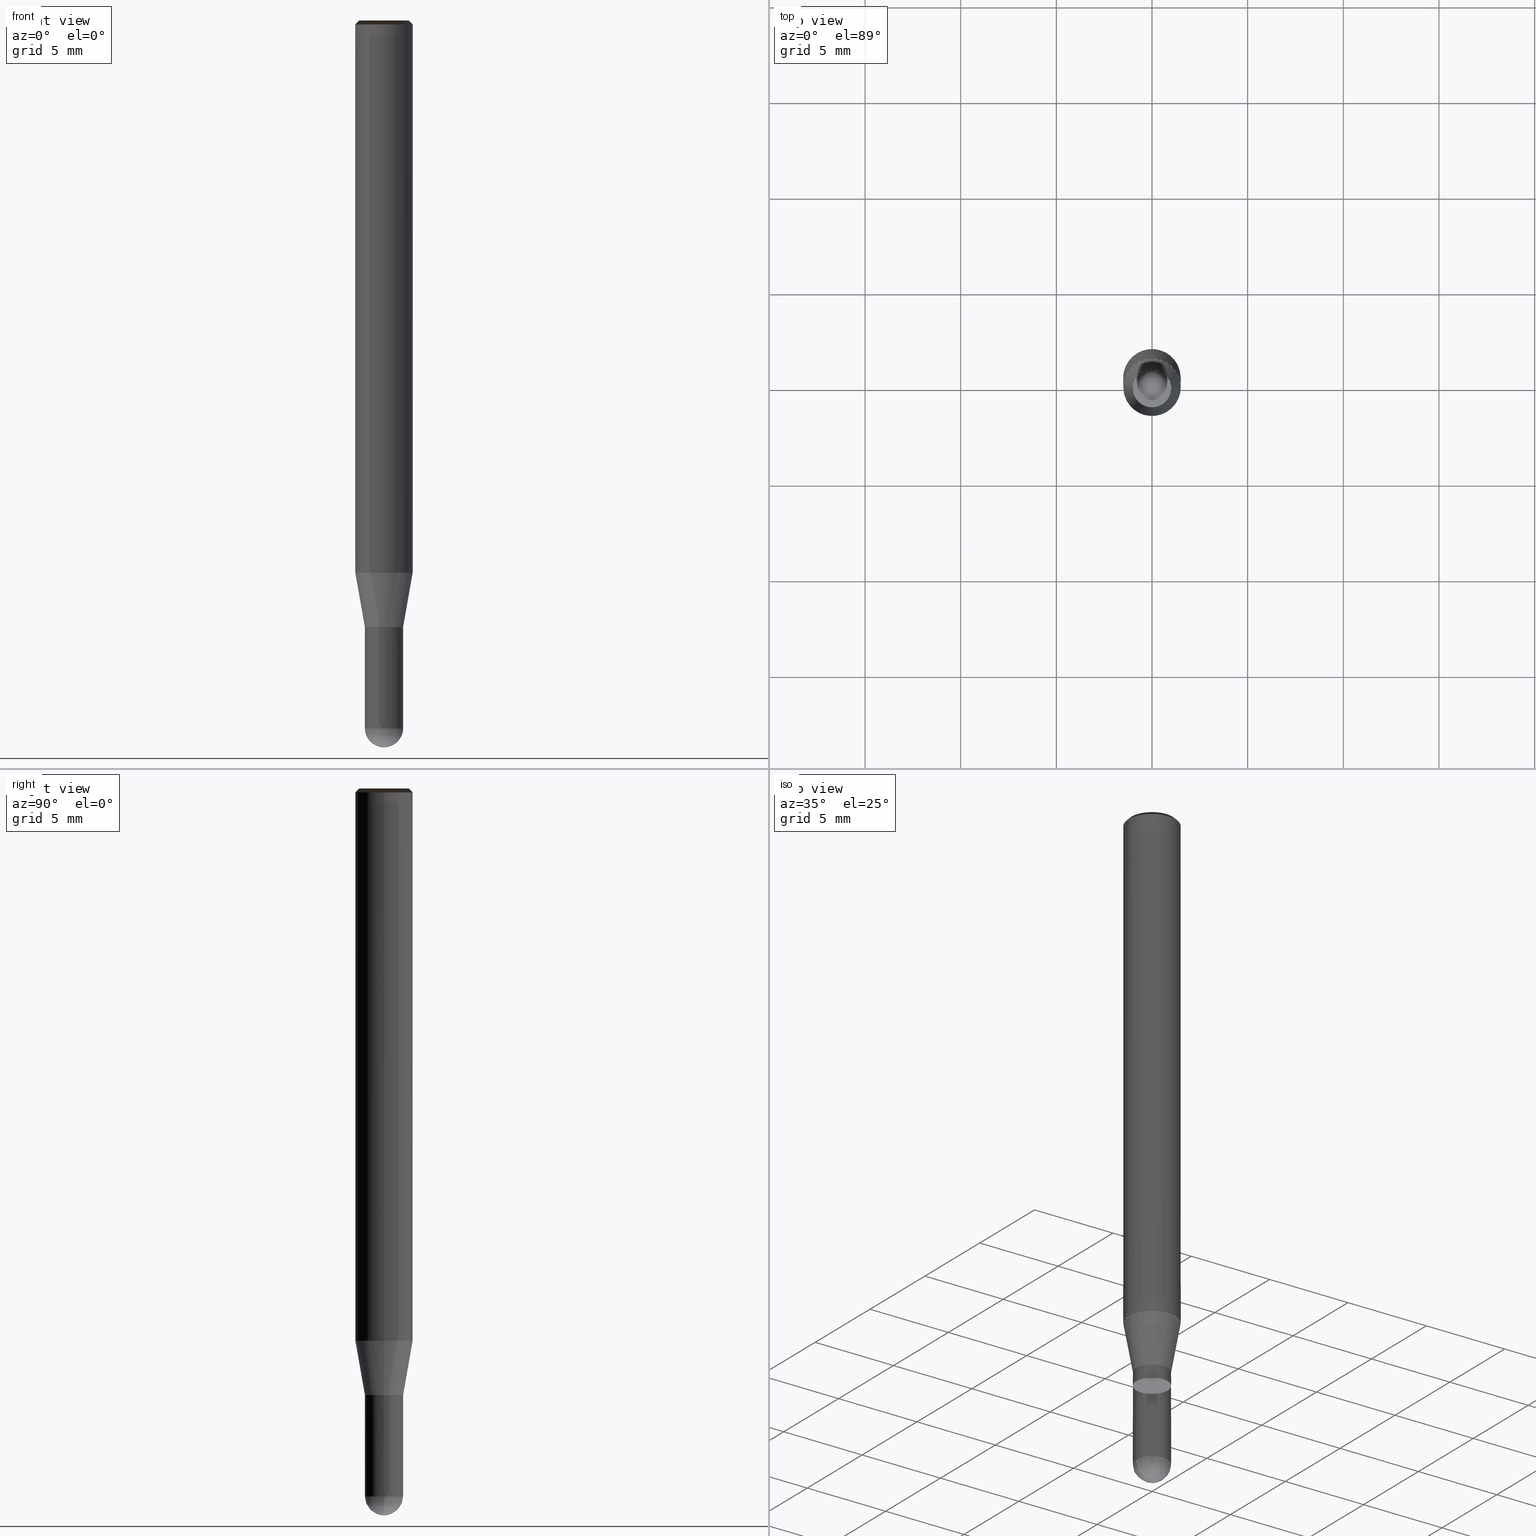
[diagram: canonical four-view strip — front | top / right | iso, engineering-drawing reading convention]
A machine part, canonical four-view strip (front | top / right | iso — engineering-drawing reading convention). The complete STEP part file that produces these views, byte-faithful:
ISO-10303-21;
HEADER;
/* Generated by ISBE GmbH (www.isbe.de) */
/* OPTION: using custom schema-name function */

FILE_DESCRIPTION(
/* description */ (''),
/* implementation_level */ '2;1');

FILE_NAME(
/*name*/ 'Drawing No  1240200   Issue  1',
/*time_stamp*/'2021-9-29T7:42:34',
/*author*/ ('ISBE GmbH'),
/*organization*/ ('ISBE GmbH'),
/*preprocessor_version*/ 'STEP IO v1.0',
/*originating_system*/ '',
/*authorisation*/ '');

FILE_SCHEMA (('AUTOMOTIVE_DESIGN'));
ENDSEC;

DATA;
#10=SHAPE_DEFINITION_REPRESENTATION(#11,#57);
#11=PRODUCT_DEFINITION_SHAPE('Document','',#13);
#12=PRODUCT_DEFINITION_CONTEXT('3D Mechanical Parts',#17,'design');
#13=PRODUCT_DEFINITION('A','First version',#14,#12);
#14=PRODUCT_DEFINITION_FORMATION_WITH_SPECIFIED_SOURCE('A','First version',#19,.MADE.);
#15=PRODUCT_RELATED_PRODUCT_CATEGORY('tool','tool',(#19));
#16=APPLICATION_PROTOCOL_DEFINITION('Draft International Standard', 'automotive_design',1999,#17);
#17=APPLICATION_CONTEXT('data for automotive mechanical design processes');
#18=PRODUCT_CONTEXT('3D Mechanical Parts',#17,'mechanical');
#19=PRODUCT('Document','Document','ISBE converted to STEP',(#18));
#20=(
LENGTH_UNIT()
NAMED_UNIT(*)
SI_UNIT(.MILLI.,.METRE.)
);
#21=(
NAMED_UNIT(*)
PLANE_ANGLE_UNIT()
SI_UNIT($,.RADIAN.)
);
#22=DIMENSIONAL_EXPONENTS(0.,0.,0.,0.,0.,0.,0.);
#23=PLANE_ANGLE_MEASURE_WITH_UNIT(PLANE_ANGLE_MEASURE(0.01745329252),#21);
#24=(
CONVERSION_BASED_UNIT('DEGREES',#23)
NAMED_UNIT(#22)
PLANE_ANGLE_UNIT()
);
#25=(
NAMED_UNIT(*)
SI_UNIT($,.STERADIAN.)
SOLID_ANGLE_UNIT()
);
#26=UNCERTAINTY_MEASURE_WITH_UNIT(LENGTH_MEASURE(0.001),#20, 'DISTANCE_ACCURACY_VALUE', 'Maximum model space distance between geometric entities at asserted connectivities');
#27=(
GEOMETRIC_REPRESENTATION_CONTEXT(3)
GLOBAL_UNCERTAINTY_ASSIGNED_CONTEXT((#26))
GLOBAL_UNIT_ASSIGNED_CONTEXT((#25,#24,#20))
REPRESENTATION_CONTEXT('ID1','3D')
);
#28=CARTESIAN_POINT('',(0.0,0.0,0.0));
#29=DIRECTION('',(1.0,0.0,0.0));
#30=DIRECTION('',(0.0,0.0,1.0));
#31=AXIS2_PLACEMENT_3D('',#28,#30,#29);
#32=CARTESIAN_POINT('',(0.0,0.0,0.0));
#33=DIRECTION('',(1.0,0.0,0.0));
#34=DIRECTION('',(0.0,0.0,1.0));
#35=AXIS2_PLACEMENT_3D('',#32,#34,#33);
#36=CARTESIAN_POINT('',(0.0,0.0,0.0));
#37=DIRECTION('',(1.0,0.0,0.0));
#38=DIRECTION('',(0.0,0.0,1.0));
#39=AXIS2_PLACEMENT_3D('',#36,#38,#37);
#40=CARTESIAN_POINT('',(0.0,0.0,0.0));
#41=DIRECTION('',(0.0,0.0,1.0));
#42=DIRECTION('',(1.0,0.0,0.0));
#43=AXIS2_PLACEMENT_3D('MCS',#40,#42,#41);
#44=CARTESIAN_POINT('',(0.0,0.0,28.7));
#45=DIRECTION('',(0.0,0.0,1.0));
#46=DIRECTION('',(1.0,0.0,0.0));
#47=AXIS2_PLACEMENT_3D('PCS',#44,#46,#45);
#48=CARTESIAN_POINT('',(0.0,0.0,-9.3));
#49=DIRECTION('',(0.0,0.0,1.0));
#50=DIRECTION('',(1.0,0.0,0.0));
#51=AXIS2_PLACEMENT_3D('CIP',#48,#50,#49);
#52=CARTESIAN_POINT('',(0.0,-1.0,-9.3));
#53=DIRECTION('',(0.0,0.0,1.0));
#54=DIRECTION('',(1.0,0.0,0.0));
#55=AXIS2_PLACEMENT_3D('CRP',#52,#54,#53);
#57=SHAPE_REPRESENTATION('Document',(#31,#35,#39,#43,#47,#51,#55),#27);
#58=DIRECTION('',(1.0,0.0,0.0));
#59=DIRECTION('',(0.0,0.0,1.0));
#60=CARTESIAN_POINT('',(-0.00999949069,-0.00010092544,-9.299839700933));
#61=CARTESIAN_POINT('',(-0.009685920771,-0.03055301235,-9.299486216201));
#62=CARTESIAN_POINT('',(-0.009291457939,-0.063392916779,-9.29794539275));
#63=CARTESIAN_POINT('',(-0.008789421059,-0.095619912058,-9.295379112949));
#64=CARTESIAN_POINT('',(-0.008119818459,-0.127619109183,-9.291790013823));
#65=CARTESIAN_POINT('',(-0.007226922046,-0.159436188152,-9.287181783414));
#66=CARTESIAN_POINT('',(-0.006056702059,-0.191062653826,-9.281559156991));
#67=CARTESIAN_POINT('',(-0.004556729719,-0.222474273261,-9.274927912182));
#68=CARTESIAN_POINT('',(-0.002676367485,-0.253640464034,-9.267294863039));
#69=CARTESIAN_POINT('',(-0.000367018786,-0.284527349918,-9.258667853037));
#70=CARTESIAN_POINT('',(0.002417608297,-0.315098943566,-9.249055747011));
#71=CARTESIAN_POINT('',(0.005721236441,-0.34531766284,-9.23846842205));
#72=CARTESIAN_POINT('',(0.009584758662,-0.375144581931,-9.226916757346));
#73=CARTESIAN_POINT('',(0.014045984796,-0.404539571835,-9.214412623016));
#74=CARTESIAN_POINT('',(0.019139396805,-0.433461396852,-9.200968867902));
#75=CARTESIAN_POINT('',(0.024895914581,-0.461867798592,-9.186599306373));
#76=CARTESIAN_POINT('',(0.031342673872,-0.489715583415,-9.171318704123));
#77=CARTESIAN_POINT('',(0.038502817926,-0.516960721807,-9.155142763005));
#78=CARTESIAN_POINT('',(0.046395304514,-0.543558464342,-9.138088104892));
#79=CARTESIAN_POINT('',(0.055034729976,-0.569463476692,-9.120172254597));
#80=CARTESIAN_POINT('',(0.064431171998,-0.594629994837,-9.101413621868));
#81=CARTESIAN_POINT('',(0.074590052777,-0.619012000731,-9.081831482468));
#82=CARTESIAN_POINT('',(0.085512024264,-0.642563418029,-9.061445958369));
#83=CARTESIAN_POINT('',(0.097192877061,-0.665238326989,-9.040277997075));
#84=CARTESIAN_POINT('',(0.109623474544,-0.686991197209,-9.018349350098));
#85=CARTESIAN_POINT('',(0.122789713617,-0.707777136545,-8.995682550603));
#86=CARTESIAN_POINT('',(0.136672513419,-0.727552154165,-8.972300890261));
#87=CARTESIAN_POINT('',(0.151247833111,-0.746273435475,-8.948228395308));
#88=CARTESIAN_POINT('',(0.166486719695,-0.763899626354,-8.923489801859));
#89=CARTESIAN_POINT('',(0.182355386609,-0.780391123918,-8.898110530491));
#90=CARTESIAN_POINT('',(0.198815323571,-0.795710370879,-8.872116660122));
#91=CARTESIAN_POINT('',(0.215823437907,-0.809822150358,-8.845534901211));
#92=CARTESIAN_POINT('',(0.233332227302,-0.822693877954,-8.818392568311));
#93=CARTESIAN_POINT('',(0.251289983599,-0.834295887739,-8.790717552004));
#94=CARTESIAN_POINT('',(0.269641026984,-0.844601708871,-8.762538290241));
#95=CARTESIAN_POINT('',(0.288325969537,-0.853588329477,-8.733883739118));
#96=CARTESIAN_POINT('',(0.307282006835,-0.861236444541,-8.704783343122));
#97=CARTESIAN_POINT('',(0.326443235946,-0.867530684618,-8.675267004879));
#98=CARTESIAN_POINT('',(0.345740997853,-0.872459822335,-8.645365054421));
#99=CARTESIAN_POINT('',(0.365104242024,-0.876016953826,-8.615108218024));
#100=CARTESIAN_POINT('',(0.384459910588,-0.878199652469,-8.584527586631));
#101=CARTESIAN_POINT('',(0.403733339271,-0.87901009256,-8.55365458391));
#102=CARTESIAN_POINT('',(0.422848672058,-0.878455140852,-8.522520933956));
#103=CARTESIAN_POINT('',(0.441729286306,-0.876546414226,-8.491158628701));
#104=CARTESIAN_POINT('',(0.460298224892,-0.873300302111,-8.459599895033));
#105=CARTESIAN_POINT('',(0.478478631842,-0.868737952659,-8.427877161685));
#106=CARTESIAN_POINT('',(0.496194187809,-0.862885222078,-8.396023025908));
#107=CARTESIAN_POINT('',(0.513369541735,-0.855772586924,-8.364070219981));
#108=CARTESIAN_POINT('',(0.52993073503,-0.847435019601,-8.332051577572));
#109=CARTESIAN_POINT('',(0.545805614673,-0.837911827695,-8.3));
#110=CARTESIAN_POINT('',(0.569763283059,-0.821808859333,-8.25));
#111=CARTESIAN_POINT('',(0.593246181681,-0.805021097811,-8.2));
#112=CARTESIAN_POINT('',(0.616234742815,-0.787562531961,-8.15));
#113=CARTESIAN_POINT('',(0.638709810657,-0.769447709575,-8.1));
#114=CARTESIAN_POINT('',(0.660652657285,-0.750691725292,-8.05));
#115=CARTESIAN_POINT('',(0.682044998263,-0.731310208013,-8.0));
#116=CARTESIAN_POINT('',(0.702869007879,-0.71131930788,-7.95));
#117=CARTESIAN_POINT('',(0.723107333995,-0.690735682821,-7.9));
#118=CARTESIAN_POINT('',(0.742743112512,-0.669576484665,-7.85));
#119=CARTESIAN_POINT('',(0.761759981416,-0.647859344852,-7.8));
#120=CARTESIAN_POINT('',(0.780142094418,-0.625602359743,-7.75));
#121=CARTESIAN_POINT('',(0.797874134154,-0.602824075537,-7.7));
#122=CARTESIAN_POINT('',(0.814941324951,-0.57954347282,-7.65));
#123=CARTESIAN_POINT('',(0.831329445136,-0.555779950745,-7.6));
#124=CARTESIAN_POINT('',(0.847024838891,-0.531553310875,-7.55));
#125=CARTESIAN_POINT('',(0.86201442763,-0.506883740672,-7.5));
#126=CARTESIAN_POINT('',(0.876285720897,-0.481791796684,-7.45));
#127=CARTESIAN_POINT('',(0.889826826772,-0.456298387414,-7.4));
#128=CARTESIAN_POINT('',(0.902626461785,-0.430424755892,-7.35));
#129=CARTESIAN_POINT('',(0.914673960314,-0.404192461982,-7.3));
#130=CARTESIAN_POINT('',(0.925959283474,-0.377623364411,-7.25));
#131=CARTESIAN_POINT('',(0.936473027481,-0.350739602555,-7.2));
#132=CARTESIAN_POINT('',(0.946206431491,-0.323563577994,-7.15));
#133=CARTESIAN_POINT('',(0.955151384898,-0.296117935842,-7.1));
#134=CARTESIAN_POINT('',(0.963300434091,-0.26842554588,-7.05));
#135=CARTESIAN_POINT('',(0.970646788666,-0.240509483496,-7.0));
#136=CARTESIAN_POINT('',(0.977184327088,-0.212393010461,-6.95));
#137=CARTESIAN_POINT('',(0.982907601786,-0.184099555541,-6.9));
#138=CARTESIAN_POINT('',(0.987811843696,-0.155652694978,-6.85));
#139=CARTESIAN_POINT('',(0.991892966232,-0.127076132844,-6.8));
#140=CARTESIAN_POINT('',(0.995147568697,-0.098393681286,-6.75));
#141=CARTESIAN_POINT('',(0.997572939108,-0.069629240688,-6.7));
#142=CARTESIAN_POINT('',(0.999167056466,-0.040806779752,-6.65));
#143=CARTESIAN_POINT('',(0.99992859243,-0.011950315527,-6.6));
#144=CARTESIAN_POINT('',(0.999856912432,0.016916106602,-6.55));
#145=CARTESIAN_POINT('',(0.9989520762,0.045768432955,-6.5));
#146=CARTESIAN_POINT('',(0.997214837713,0.074582621595,-6.45));
#147=CARTESIAN_POINT('',(0.99464664457,0.103334662367,-6.4));
#148=CARTESIAN_POINT('',(0.991249636781,0.1320005969,-6.35));
#149=CARTESIAN_POINT('',(0.98702664499,0.160556538575,-6.3));
#150=CARTESIAN_POINT('',(0.981981188114,0.188978692425,-6.25));
#151=CARTESIAN_POINT('',(0.976117470407,0.217243374967,-6.2));
#152=CARTESIAN_POINT('',(0.969440377961,0.245327033935,-6.15));
#153=CARTESIAN_POINT('',(0.961955474633,0.273206267905,-6.1));
#154=CARTESIAN_POINT('',(0.953668997411,0.300857845795,-6.05));
#155=CARTESIAN_POINT('',(0.944587851212,0.328258726224,-6.0));
#156=CARTESIAN_POINT('',(0.934719603132,0.355386076711,-5.95));
#157=CARTESIAN_POINT('',(0.924072476141,0.382217292699,-5.9));
#158=CARTESIAN_POINT('',(0.912655342228,0.408730016395,-5.85));
#159=CARTESIAN_POINT('',(0.900477715011,0.434902155397,-5.8));
#160=CARTESIAN_POINT('',(0.887549741807,0.460711901103,-5.75));
#161=CARTESIAN_POINT('',(0.87388219518,0.486137746886,-5.7));
#162=CARTESIAN_POINT('',(0.859486463961,0.511158506011,-5.65));
#163=CARTESIAN_POINT('',(0.844374543759,0.535753329296,-5.6));
#164=CARTESIAN_POINT('',(0.828559026967,0.559901722476,-5.55));
#165=CARTESIAN_POINT('',(0.812053092267,0.583583563288,-5.5));
#166=CARTESIAN_POINT('',(0.794870493649,0.606779118235,-5.45));
#167=CARTESIAN_POINT('',(0.777025548952,0.62946905903,-5.4));
#168=CARTESIAN_POINT('',(0.758533127929,0.651634478703,-5.35));
#169=CARTESIAN_POINT('',(0.739408639861,0.673256907353,-5.3));
#170=CARTESIAN_POINT('',(0.719668020716,0.694318327541,-5.25));
#171=CARTESIAN_POINT('',(0.699327719866,0.714801189302,-5.2));
#172=CARTESIAN_POINT('',(0.678404686385,0.73468842477,-5.15));
#173=CARTESIAN_POINT('',(0.656916354925,0.753963462399,-5.1));
#174=CARTESIAN_POINT('',(0.634880631183,0.772610240774,-5.05));
#175=CARTESIAN_POINT('',(0.612315876989,0.790613221991,-5.0));
#176=CARTESIAN_POINT('',(0.589240894998,0.807957404609,-4.95));
#177=CARTESIAN_POINT('',(0.565674913026,0.824628336145,-4.9));
#178=CARTESIAN_POINT('',(0.541637568028,0.840612125121,-4.85));
#179=CARTESIAN_POINT('',(0.517148889734,0.855895452638,-4.8));
#180=CARTESIAN_POINT('',(0.492229283959,0.870465583474,-4.75));
#181=CARTESIAN_POINT('',(0.466899515599,0.884310376697,-4.7));
#182=CARTESIAN_POINT('',(0.441180691328,0.897418295779,-4.65));
#183=CARTESIAN_POINT('',(0.415094242011,0.909778418215,-4.6));
#184=CARTESIAN_POINT('',(0.388661904847,0.921380444616,-4.55));
#185=CARTESIAN_POINT('',(0.361905705253,0.932214707299,-4.5));
#186=CARTESIAN_POINT('',(0.334847938515,0.942272178339,-4.45));
#187=CARTESIAN_POINT('',(0.307511151206,0.951544477092,-4.4));
#188=CARTESIAN_POINT('',(0.279918122399,0.960023877178,-4.35));
#189=CARTESIAN_POINT('',(0.252091844688,0.967703312923,-4.3));
#190=CARTESIAN_POINT('',(0.224055505029,0.974576385239,-4.25));
#191=CARTESIAN_POINT('',(0.195832465414,0.980637366966,-4.2));
#192=CARTESIAN_POINT('',(0.167446243411,0.985881207635,-4.15));
#193=CARTESIAN_POINT('',(0.138920492562,0.990303537682,-4.1));
#194=CARTESIAN_POINT('',(0.110278982675,0.99390067209,-4.05));
#195=CARTESIAN_POINT('',(0.081545580017,0.996669613453,-4.0));
#196=CARTESIAN_POINT('',(0.052744227428,0.99860805448,-3.95));
#197=CARTESIAN_POINT('',(0.023898924368,0.999714379918,-3.9));
#198=CARTESIAN_POINT('',(-0.004966293079,0.99998766789,-3.85));
#199=CARTESIAN_POINT('',(-0.033827372235,0.999427690675,-3.8));
#200=CARTESIAN_POINT('',(0.00999949069,0.00010092544,-9.299839700933));
#201=CARTESIAN_POINT('',(0.009685920771,0.03055301235,-9.299486216201));
#202=CARTESIAN_POINT('',(0.009291457939,0.063392916779,-9.29794539275));
#203=CARTESIAN_POINT('',(0.008789421059,0.095619912058,-9.295379112949));
#204=CARTESIAN_POINT('',(0.008119818459,0.127619109183,-9.291790013823));
#205=CARTESIAN_POINT('',(0.007226922046,0.159436188152,-9.287181783414));
#206=CARTESIAN_POINT('',(0.006056702059,0.191062653826,-9.281559156991));
#207=CARTESIAN_POINT('',(0.004556729719,0.222474273261,-9.274927912182));
#208=CARTESIAN_POINT('',(0.002676367485,0.253640464034,-9.267294863039));
#209=CARTESIAN_POINT('',(0.000367018786,0.284527349918,-9.258667853037));
#210=CARTESIAN_POINT('',(-0.002417608297,0.315098943566,-9.249055747011));
#211=CARTESIAN_POINT('',(-0.005721236441,0.34531766284,-9.23846842205));
#212=CARTESIAN_POINT('',(-0.009584758662,0.375144581931,-9.226916757346));
#213=CARTESIAN_POINT('',(-0.014045984796,0.404539571835,-9.214412623016));
#214=CARTESIAN_POINT('',(-0.019139396805,0.433461396852,-9.200968867902));
#215=CARTESIAN_POINT('',(-0.024895914581,0.461867798592,-9.186599306373));
#216=CARTESIAN_POINT('',(-0.031342673872,0.489715583415,-9.171318704123));
#217=CARTESIAN_POINT('',(-0.038502817926,0.516960721807,-9.155142763005));
#218=CARTESIAN_POINT('',(-0.046395304514,0.543558464342,-9.138088104892));
#219=CARTESIAN_POINT('',(-0.055034729976,0.569463476692,-9.120172254597));
#220=CARTESIAN_POINT('',(-0.064431171998,0.594629994837,-9.101413621868));
#221=CARTESIAN_POINT('',(-0.074590052777,0.619012000731,-9.081831482468));
#222=CARTESIAN_POINT('',(-0.085512024264,0.642563418029,-9.061445958369));
#223=CARTESIAN_POINT('',(-0.097192877061,0.665238326989,-9.040277997075));
#224=CARTESIAN_POINT('',(-0.109623474544,0.686991197209,-9.018349350098));
#225=CARTESIAN_POINT('',(-0.122789713617,0.707777136545,-8.995682550603));
#226=CARTESIAN_POINT('',(-0.136672513419,0.727552154165,-8.972300890261));
#227=CARTESIAN_POINT('',(-0.151247833111,0.746273435475,-8.948228395308));
#228=CARTESIAN_POINT('',(-0.166486719695,0.763899626354,-8.923489801859));
#229=CARTESIAN_POINT('',(-0.182355386609,0.780391123918,-8.898110530491));
#230=CARTESIAN_POINT('',(-0.198815323571,0.795710370879,-8.872116660122));
#231=CARTESIAN_POINT('',(-0.215823437907,0.809822150358,-8.845534901211));
#232=CARTESIAN_POINT('',(-0.233332227302,0.822693877954,-8.818392568311));
#233=CARTESIAN_POINT('',(-0.251289983599,0.834295887739,-8.790717552004));
#234=CARTESIAN_POINT('',(-0.269641026984,0.844601708871,-8.762538290241));
#235=CARTESIAN_POINT('',(-0.288325969537,0.853588329477,-8.733883739118));
#236=CARTESIAN_POINT('',(-0.307282006835,0.861236444541,-8.704783343122));
#237=CARTESIAN_POINT('',(-0.326443235946,0.867530684618,-8.675267004879));
#238=CARTESIAN_POINT('',(-0.345740997853,0.872459822335,-8.645365054421));
#239=CARTESIAN_POINT('',(-0.365104242024,0.876016953826,-8.615108218024));
#240=CARTESIAN_POINT('',(-0.384459910588,0.878199652469,-8.584527586631));
#241=CARTESIAN_POINT('',(-0.403733339271,0.87901009256,-8.55365458391));
#242=CARTESIAN_POINT('',(-0.422848672058,0.878455140852,-8.522520933956));
#243=CARTESIAN_POINT('',(-0.441729286306,0.876546414226,-8.491158628701));
#244=CARTESIAN_POINT('',(-0.460298224892,0.873300302111,-8.459599895033));
#245=CARTESIAN_POINT('',(-0.478478631842,0.868737952659,-8.427877161685));
#246=CARTESIAN_POINT('',(-0.496194187809,0.862885222078,-8.396023025908));
#247=CARTESIAN_POINT('',(-0.513369541735,0.855772586924,-8.364070219981));
#248=CARTESIAN_POINT('',(-0.52993073503,0.847435019601,-8.332051577572));
#249=CARTESIAN_POINT('',(-0.545805614673,0.837911827695,-8.3));
#250=CARTESIAN_POINT('',(-0.569763283059,0.821808859333,-8.25));
#251=CARTESIAN_POINT('',(-0.593246181681,0.805021097811,-8.2));
#252=CARTESIAN_POINT('',(-0.616234742815,0.787562531961,-8.15));
#253=CARTESIAN_POINT('',(-0.638709810657,0.769447709575,-8.1));
#254=CARTESIAN_POINT('',(-0.660652657285,0.750691725292,-8.05));
#255=CARTESIAN_POINT('',(-0.682044998263,0.731310208013,-8.0));
#256=CARTESIAN_POINT('',(-0.702869007879,0.71131930788,-7.95));
#257=CARTESIAN_POINT('',(-0.723107333995,0.690735682821,-7.9));
#258=CARTESIAN_POINT('',(-0.742743112512,0.669576484665,-7.85));
#259=CARTESIAN_POINT('',(-0.761759981416,0.647859344852,-7.8));
#260=CARTESIAN_POINT('',(-0.780142094418,0.625602359743,-7.75));
#261=CARTESIAN_POINT('',(-0.797874134154,0.602824075537,-7.7));
#262=CARTESIAN_POINT('',(-0.814941324951,0.57954347282,-7.65));
#263=CARTESIAN_POINT('',(-0.831329445136,0.555779950745,-7.6));
#264=CARTESIAN_POINT('',(-0.847024838891,0.531553310875,-7.55));
#265=CARTESIAN_POINT('',(-0.86201442763,0.506883740672,-7.5));
#266=CARTESIAN_POINT('',(-0.876285720897,0.481791796684,-7.45));
#267=CARTESIAN_POINT('',(-0.889826826772,0.456298387414,-7.4));
#268=CARTESIAN_POINT('',(-0.902626461785,0.430424755892,-7.35));
#269=CARTESIAN_POINT('',(-0.914673960314,0.404192461982,-7.3));
#270=CARTESIAN_POINT('',(-0.925959283474,0.377623364411,-7.25));
#271=CARTESIAN_POINT('',(-0.936473027481,0.350739602555,-7.2));
#272=CARTESIAN_POINT('',(-0.946206431491,0.323563577994,-7.15));
#273=CARTESIAN_POINT('',(-0.955151384898,0.296117935842,-7.1));
#274=CARTESIAN_POINT('',(-0.963300434091,0.26842554588,-7.05));
#275=CARTESIAN_POINT('',(-0.970646788666,0.240509483496,-7.0));
#276=CARTESIAN_POINT('',(-0.977184327088,0.212393010461,-6.95));
#277=CARTESIAN_POINT('',(-0.982907601786,0.184099555541,-6.9));
#278=CARTESIAN_POINT('',(-0.987811843696,0.155652694978,-6.85));
#279=CARTESIAN_POINT('',(-0.991892966232,0.127076132844,-6.8));
#280=CARTESIAN_POINT('',(-0.995147568697,0.098393681286,-6.75));
#281=CARTESIAN_POINT('',(-0.997572939108,0.069629240688,-6.7));
#282=CARTESIAN_POINT('',(-0.999167056466,0.040806779752,-6.65));
#283=CARTESIAN_POINT('',(-0.99992859243,0.011950315527,-6.6));
#284=CARTESIAN_POINT('',(-0.999856912432,-0.016916106602,-6.55));
#285=CARTESIAN_POINT('',(-0.9989520762,-0.045768432955,-6.5));
#286=CARTESIAN_POINT('',(-0.997214837713,-0.074582621595,-6.45));
#287=CARTESIAN_POINT('',(-0.99464664457,-0.103334662367,-6.4));
#288=CARTESIAN_POINT('',(-0.991249636781,-0.1320005969,-6.35));
#289=CARTESIAN_POINT('',(-0.98702664499,-0.160556538575,-6.3));
#290=CARTESIAN_POINT('',(-0.981981188114,-0.188978692425,-6.25));
#291=CARTESIAN_POINT('',(-0.976117470407,-0.217243374967,-6.2));
#292=CARTESIAN_POINT('',(-0.969440377961,-0.245327033935,-6.15));
#293=CARTESIAN_POINT('',(-0.961955474633,-0.273206267905,-6.1));
#294=CARTESIAN_POINT('',(-0.953668997411,-0.300857845795,-6.05));
#295=CARTESIAN_POINT('',(-0.944587851212,-0.328258726224,-6.0));
#296=CARTESIAN_POINT('',(-0.934719603132,-0.355386076711,-5.95));
#297=CARTESIAN_POINT('',(-0.924072476141,-0.382217292699,-5.9));
#298=CARTESIAN_POINT('',(-0.912655342228,-0.408730016395,-5.85));
#299=CARTESIAN_POINT('',(-0.900477715011,-0.434902155397,-5.8));
#300=CARTESIAN_POINT('',(-0.887549741807,-0.460711901103,-5.75));
#301=CARTESIAN_POINT('',(-0.87388219518,-0.486137746886,-5.7));
#302=CARTESIAN_POINT('',(-0.859486463961,-0.511158506011,-5.65));
#303=CARTESIAN_POINT('',(-0.844374543759,-0.535753329296,-5.6));
#304=CARTESIAN_POINT('',(-0.828559026967,-0.559901722476,-5.55));
#305=CARTESIAN_POINT('',(-0.812053092267,-0.583583563288,-5.5));
#306=CARTESIAN_POINT('',(-0.794870493649,-0.606779118235,-5.45));
#307=CARTESIAN_POINT('',(-0.777025548952,-0.62946905903,-5.4));
#308=CARTESIAN_POINT('',(-0.758533127929,-0.651634478703,-5.35));
#309=CARTESIAN_POINT('',(-0.739408639861,-0.673256907353,-5.3));
#310=CARTESIAN_POINT('',(-0.719668020716,-0.694318327541,-5.25));
#311=CARTESIAN_POINT('',(-0.699327719866,-0.714801189302,-5.2));
#312=CARTESIAN_POINT('',(-0.678404686385,-0.73468842477,-5.15));
#313=CARTESIAN_POINT('',(-0.656916354925,-0.753963462399,-5.1));
#314=CARTESIAN_POINT('',(-0.634880631183,-0.772610240774,-5.05));
#315=CARTESIAN_POINT('',(-0.612315876989,-0.790613221991,-5.0));
#316=CARTESIAN_POINT('',(-0.589240894998,-0.807957404609,-4.95));
#317=CARTESIAN_POINT('',(-0.565674913026,-0.824628336145,-4.9));
#318=CARTESIAN_POINT('',(-0.541637568028,-0.840612125121,-4.85));
#319=CARTESIAN_POINT('',(-0.517148889734,-0.855895452638,-4.8));
#320=CARTESIAN_POINT('',(-0.492229283959,-0.870465583474,-4.75));
#321=CARTESIAN_POINT('',(-0.466899515599,-0.884310376697,-4.7));
#322=CARTESIAN_POINT('',(-0.441180691328,-0.897418295779,-4.65));
#323=CARTESIAN_POINT('',(-0.415094242011,-0.909778418215,-4.6));
#324=CARTESIAN_POINT('',(-0.388661904847,-0.921380444616,-4.55));
#325=CARTESIAN_POINT('',(-0.361905705253,-0.932214707299,-4.5));
#326=CARTESIAN_POINT('',(-0.334847938515,-0.942272178339,-4.45));
#327=CARTESIAN_POINT('',(-0.307511151206,-0.951544477092,-4.4));
#328=CARTESIAN_POINT('',(-0.279918122399,-0.960023877178,-4.35));
#329=CARTESIAN_POINT('',(-0.252091844688,-0.967703312923,-4.3));
#330=CARTESIAN_POINT('',(-0.224055505029,-0.974576385239,-4.25));
#331=CARTESIAN_POINT('',(-0.195832465414,-0.980637366966,-4.2));
#332=CARTESIAN_POINT('',(-0.167446243411,-0.985881207635,-4.15));
#333=CARTESIAN_POINT('',(-0.138920492562,-0.990303537682,-4.1));
#334=CARTESIAN_POINT('',(-0.110278982675,-0.99390067209,-4.05));
#335=CARTESIAN_POINT('',(-0.081545580017,-0.996669613453,-4.0));
#336=CARTESIAN_POINT('',(-0.052744227428,-0.99860805448,-3.95));
#337=CARTESIAN_POINT('',(-0.023898924368,-0.999714379918,-3.9));
#338=CARTESIAN_POINT('',(0.004966293079,-0.99998766789,-3.85));
#339=CARTESIAN_POINT('',(0.033827372235,-0.999427690675,-3.8));
#340=CARTESIAN_POINT('',(0.0,0.0,-9.3));
#341=CARTESIAN_POINT('',(1.0,0.0,-9.3));
#342=CARTESIAN_POINT('',(1.0,1.0,-9.3));
#343=CARTESIAN_POINT('',(0.0,1.0,-9.3));
#344=CARTESIAN_POINT('',(-1.0,1.0,-9.3));
#345=CARTESIAN_POINT('',(-1.0,0.0,-9.3));
#346=CARTESIAN_POINT('',(1.0,0.0,-8.3));
#347=CARTESIAN_POINT('',(1.0,1.0,-8.3));
#348=CARTESIAN_POINT('',(0.0,1.0,-8.3));
#349=CARTESIAN_POINT('',(-1.0,1.0,-8.3));
#350=CARTESIAN_POINT('',(-1.0,0.0,-8.3));
#351=CARTESIAN_POINT('',(1.0,0.0,-3.7875));
#352=CARTESIAN_POINT('',(1.0,1.0,-3.7875));
#353=CARTESIAN_POINT('',(0.0,1.0,-3.7875));
#354=CARTESIAN_POINT('',(-1.0,1.0,-3.7875));
#355=CARTESIAN_POINT('',(-1.0,0.0,-3.7875));
#356=CARTESIAN_POINT('',(0.0,0.0,-3.7875));
#357=CARTESIAN_POINT('',(-1.0,-1.0,-9.3));
#358=CARTESIAN_POINT('',(0.0,-1.0,-9.3));
#359=CARTESIAN_POINT('',(1.0,-1.0,-9.3));
#360=CARTESIAN_POINT('',(-1.0,-1.0,-8.3));
#361=CARTESIAN_POINT('',(0.0,-1.0,-8.3));
#362=CARTESIAN_POINT('',(1.0,-1.0,-8.3));
#363=CARTESIAN_POINT('',(-1.0,-1.0,-3.7875));
#364=CARTESIAN_POINT('',(0.0,-1.0,-3.7875));
#365=CARTESIAN_POINT('',(1.0,-1.0,-3.7875));
#366=CARTESIAN_POINT('',(1.0,0.0,-3.0));
#367=CARTESIAN_POINT('',(1.0,1.0,-3.0));
#368=CARTESIAN_POINT('',(0.0,1.0,-3.0));
#369=CARTESIAN_POINT('',(-1.0,1.0,-3.0));
#370=CARTESIAN_POINT('',(-1.0,0.0,-3.0));
#371=CARTESIAN_POINT('',(1.5,0.0,-0.164359090191));
#372=CARTESIAN_POINT('',(1.5,1.5,-0.164359090191));
#373=CARTESIAN_POINT('',(0.0,1.5,-0.164359090191));
#374=CARTESIAN_POINT('',(-1.5,1.5,-0.164359090191));
#375=CARTESIAN_POINT('',(-1.5,0.0,-0.164359090191));
#376=CARTESIAN_POINT('',(1.5,0.0,0.0));
#377=CARTESIAN_POINT('',(1.5,1.5,0.0));
#378=CARTESIAN_POINT('',(0.0,1.5,0.0));
#379=CARTESIAN_POINT('',(-1.5,1.5,0.0));
#380=CARTESIAN_POINT('',(-1.5,0.0,0.0));
#381=CARTESIAN_POINT('',(1.5,0.0,28.5));
#382=CARTESIAN_POINT('',(1.5,1.5,28.5));
#383=CARTESIAN_POINT('',(0.0,1.5,28.5));
#384=CARTESIAN_POINT('',(-1.5,1.5,28.5));
#385=CARTESIAN_POINT('',(-1.5,0.0,28.5));
#386=CARTESIAN_POINT('',(1.3,0.0,28.7));
#387=CARTESIAN_POINT('',(1.3,1.3,28.7));
#388=CARTESIAN_POINT('',(0.0,1.3,28.7));
#389=CARTESIAN_POINT('',(-1.3,1.3,28.7));
#390=CARTESIAN_POINT('',(-1.3,0.0,28.7));
#391=CARTESIAN_POINT('',(0.0,0.0,28.7));
#392=CARTESIAN_POINT('',(-1.0,-1.0,-3.0));
#393=CARTESIAN_POINT('',(0.0,-1.0,-3.0));
#394=CARTESIAN_POINT('',(1.0,-1.0,-3.0));
#395=CARTESIAN_POINT('',(-1.5,-1.5,-0.164359090191));
#396=CARTESIAN_POINT('',(0.0,-1.5,-0.164359090191));
#397=CARTESIAN_POINT('',(1.5,-1.5,-0.164359090191));
#398=CARTESIAN_POINT('',(-1.5,-1.5,0.0));
#399=CARTESIAN_POINT('',(0.0,-1.5,0.0));
#400=CARTESIAN_POINT('',(1.5,-1.5,0.0));
#401=CARTESIAN_POINT('',(-1.5,-1.5,28.5));
#402=CARTESIAN_POINT('',(0.0,-1.5,28.5));
#403=CARTESIAN_POINT('',(1.5,-1.5,28.5));
#404=CARTESIAN_POINT('',(-1.3,-1.3,28.7));
#405=CARTESIAN_POINT('',(0.0,-1.3,28.7));
#406=CARTESIAN_POINT('',(1.3,-1.3,28.7));
#407=(
BOUNDED_CURVE()
B_SPLINE_CURVE(1,(#60,#61,#62,#63,#64,#65,#66,#67,#68,#69,#70,#71,#72,#73,#74,#75,#76,#77,#78,#79,#80,#81,#82,#83,#84,#85,#86,#87,#88,#89,#90,#91,#92,#93,#94,#95,#96,#97,#98,#99,#100,#101,#102,#103,#104,#105,#106,#107,#108,#109,#110,#111,#112,#113,#114,#115,#116,#117,#118,#119,#120,#121,#122,#123,#124,#125,#126,#127,#128,#129,#130,#131,#132,#133,#134,#135,#136,#137,#138,#139,#140,#141,#142,#143,#144,#145,#146,#147,#148,#149,#150,#151,#152,#153,#154,#155,#156,#157,#158,#159,#160,#161,#162,#163,#164,#165,#166,#167,#168,#169,#170,#171,#172,#173,#174,#175,#176,#177,#178,#179,#180,#181,#182,#183,#184,#185,#186,#187,#188,#189,#190,#191,#192,#193,#194,#195,#196,#197,#198,#199),.UNSPECIFIED.,.F.,.F.)
B_SPLINE_CURVE_WITH_KNOTS((2,1,1,1,1,1,1,1,1,1,1,1,1,1,1,1,1,1,1,1,1,1,1,1,1,1,1,1,1,1,1,1,1,1,1,1,1,1,1,1,1,1,1,1,1,1,1,1,1,1,1,1,1,1,1,1,1,1,1,1,1,1,1,1,1,1,1,1,1,1,1,1,1,1,1,1,1,1,1,1,1,1,1,1,1,1,1,1,1,1,1,1,1,1,1,1,1,1,1,1,1,1,1,1,1,1,1,1,1,1,1,1,1,1,1,1,1,1,1,1,1,1,1,1,1,1,1,1,1,1,1,1,1,1,1,1,1,1,1,2),
(0.0,0.004438082451,0.009229198364,0.013940824471,0.018634075036,0.023320717206,0.028004769463,0.032688133685,0.037371990941,0.042057270334,0.046744840133,0.051435596508,0.056130507859,0.060830636918,0.065537150067,0.070251318295,0.074974512059,0.079708191361,0.084453891877,0.089213207815,0.093987772045,0.098779234082,0.103589236429,0.108419389867,0.113271248218,0.118146283132,0.123045859432,0.127971211499,0.132923421158,0.137903397467,0.142911858736,0.147949317076,0.153016065678,0.158112168968,0.163237455732,0.168391515242,0.173573696351,0.178783109498,0.184018631521,0.189278913131,0.194562388897,0.199867289556,0.205191656462,0.210533357952,0.21589010745,0.221259483057,0.226638948455,0.232025874869,0.237417563901,0.242811271018,0.251224479118,0.259637687218,0.268050895317,0.276464103417,0.284877311517,0.293290519617,0.301703727717,0.310116935816,0.318530143916,0.326943352016,0.335356560116,0.343769768216,0.352182976315,0.360596184415,0.369009392515,0.377422600615,0.385835808715,0.394249016814,0.402662224914,0.411075433014,0.419488641114,0.427901849214,0.436315057313,0.444728265413,0.453141473513,0.461554681613,0.469967889713,0.478381097812,0.486794305912,0.495207514012,0.503620722112,0.512033930212,0.520447138311,0.528860346411,0.537273554511,0.545686762611,0.554099970711,0.56251317881,0.57092638691,0.57933959501,0.58775280311,0.59616601121,0.604579219309,0.612992427409,0.621405635509,0.629818843609,0.638232051709,0.646645259808,0.655058467908,0.663471676008,0.671884884108,0.680298092208,0.688711300307,0.697124508407,0.705537716507,0.713950924607,0.722364132707,0.730777340806,0.739190548906,0.747603757006,0.756016965106,0.764430173206,0.772843381305,0.781256589405,0.789669797505,0.798083005605,0.806496213705,0.814909421804,0.823322629904,0.831735838004,0.840149046104,0.848562254204,0.856975462303,0.865388670403,0.873801878503,0.882215086603,0.890628294703,0.899041502802,0.907454710902,0.915867919002,0.924281127102,0.932694335202,0.941107543301,0.949520751401,0.957933959501,0.966347167601,0.974760375701,0.9831735838,0.9915867919,1.0),.UNSPECIFIED.)
CURVE()
GEOMETRIC_REPRESENTATION_ITEM()
RATIONAL_B_SPLINE_CURVE((1.0,1.0,1.0,1.0,1.0,1.0,1.0,1.0,1.0,1.0,1.0,1.0,1.0,1.0,1.0,1.0,1.0,1.0,1.0,1.0,1.0,1.0,1.0,1.0,1.0,1.0,1.0,1.0,1.0,1.0,1.0,1.0,1.0,1.0,1.0,1.0,1.0,1.0,1.0,1.0,1.0,1.0,1.0,1.0,1.0,1.0,1.0,1.0,1.0,1.0,1.0,1.0,1.0,1.0,1.0,1.0,1.0,1.0,1.0,1.0,1.0,1.0,1.0,1.0,1.0,1.0,1.0,1.0,1.0,1.0,1.0,1.0,1.0,1.0,1.0,1.0,1.0,1.0,1.0,1.0,1.0,1.0,1.0,1.0,1.0,1.0,1.0,1.0,1.0,1.0,1.0,1.0,1.0,1.0,1.0,1.0,1.0,1.0,1.0,1.0,1.0,1.0,1.0,1.0,1.0,1.0,1.0,1.0,1.0,1.0,1.0,1.0,1.0,1.0,1.0,1.0,1.0,1.0,1.0,1.0,1.0,1.0,1.0,1.0,1.0,1.0,1.0,1.0,1.0,1.0,1.0,1.0,1.0,1.0,1.0,1.0,1.0,1.0,1.0,1.0))
REPRESENTATION_ITEM('')
);
#408=(
BOUNDED_CURVE()
B_SPLINE_CURVE(1,(#200,#201,#202,#203,#204,#205,#206,#207,#208,#209,#210,#211,#212,#213,#214,#215,#216,#217,#218,#219,#220,#221,#222,#223,#224,#225,#226,#227,#228,#229,#230,#231,#232,#233,#234,#235,#236,#237,#238,#239,#240,#241,#242,#243,#244,#245,#246,#247,#248,#249,#250,#251,#252,#253,#254,#255,#256,#257,#258,#259,#260,#261,#262,#263,#264,#265,#266,#267,#268,#269,#270,#271,#272,#273,#274,#275,#276,#277,#278,#279,#280,#281,#282,#283,#284,#285,#286,#287,#288,#289,#290,#291,#292,#293,#294,#295,#296,#297,#298,#299,#300,#301,#302,#303,#304,#305,#306,#307,#308,#309,#310,#311,#312,#313,#314,#315,#316,#317,#318,#319,#320,#321,#322,#323,#324,#325,#326,#327,#328,#329,#330,#331,#332,#333,#334,#335,#336,#337,#338,#339),.UNSPECIFIED.,.F.,.F.)
B_SPLINE_CURVE_WITH_KNOTS((2,1,1,1,1,1,1,1,1,1,1,1,1,1,1,1,1,1,1,1,1,1,1,1,1,1,1,1,1,1,1,1,1,1,1,1,1,1,1,1,1,1,1,1,1,1,1,1,1,1,1,1,1,1,1,1,1,1,1,1,1,1,1,1,1,1,1,1,1,1,1,1,1,1,1,1,1,1,1,1,1,1,1,1,1,1,1,1,1,1,1,1,1,1,1,1,1,1,1,1,1,1,1,1,1,1,1,1,1,1,1,1,1,1,1,1,1,1,1,1,1,1,1,1,1,1,1,1,1,1,1,1,1,1,1,1,1,1,1,2),
(0.0,0.004438082451,0.009229198364,0.013940824471,0.018634075036,0.023320717206,0.028004769463,0.032688133685,0.037371990941,0.042057270334,0.046744840133,0.051435596508,0.056130507859,0.060830636918,0.065537150067,0.070251318295,0.074974512059,0.079708191361,0.084453891877,0.089213207815,0.093987772045,0.098779234082,0.103589236429,0.108419389867,0.113271248218,0.118146283132,0.123045859432,0.127971211499,0.132923421158,0.137903397467,0.142911858736,0.147949317076,0.153016065678,0.158112168968,0.163237455732,0.168391515242,0.173573696351,0.178783109498,0.184018631521,0.189278913131,0.194562388897,0.199867289556,0.205191656462,0.210533357952,0.21589010745,0.221259483057,0.226638948455,0.232025874869,0.237417563901,0.242811271018,0.251224479118,0.259637687218,0.268050895317,0.276464103417,0.284877311517,0.293290519617,0.301703727717,0.310116935816,0.318530143916,0.326943352016,0.335356560116,0.343769768216,0.352182976315,0.360596184415,0.369009392515,0.377422600615,0.385835808715,0.394249016814,0.402662224914,0.411075433014,0.419488641114,0.427901849214,0.436315057313,0.444728265413,0.453141473513,0.461554681613,0.469967889713,0.478381097812,0.486794305912,0.495207514012,0.503620722112,0.512033930212,0.520447138311,0.528860346411,0.537273554511,0.545686762611,0.554099970711,0.56251317881,0.57092638691,0.57933959501,0.58775280311,0.59616601121,0.604579219309,0.612992427409,0.621405635509,0.629818843609,0.638232051709,0.646645259808,0.655058467908,0.663471676008,0.671884884108,0.680298092208,0.688711300307,0.697124508407,0.705537716507,0.713950924607,0.722364132707,0.730777340806,0.739190548906,0.747603757006,0.756016965106,0.764430173206,0.772843381305,0.781256589405,0.789669797505,0.798083005605,0.806496213705,0.814909421804,0.823322629904,0.831735838004,0.840149046104,0.848562254204,0.856975462303,0.865388670403,0.873801878503,0.882215086603,0.890628294703,0.899041502802,0.907454710902,0.915867919002,0.924281127102,0.932694335202,0.941107543301,0.949520751401,0.957933959501,0.966347167601,0.974760375701,0.9831735838,0.9915867919,1.0),.UNSPECIFIED.)
CURVE()
GEOMETRIC_REPRESENTATION_ITEM()
RATIONAL_B_SPLINE_CURVE((1.0,1.0,1.0,1.0,1.0,1.0,1.0,1.0,1.0,1.0,1.0,1.0,1.0,1.0,1.0,1.0,1.0,1.0,1.0,1.0,1.0,1.0,1.0,1.0,1.0,1.0,1.0,1.0,1.0,1.0,1.0,1.0,1.0,1.0,1.0,1.0,1.0,1.0,1.0,1.0,1.0,1.0,1.0,1.0,1.0,1.0,1.0,1.0,1.0,1.0,1.0,1.0,1.0,1.0,1.0,1.0,1.0,1.0,1.0,1.0,1.0,1.0,1.0,1.0,1.0,1.0,1.0,1.0,1.0,1.0,1.0,1.0,1.0,1.0,1.0,1.0,1.0,1.0,1.0,1.0,1.0,1.0,1.0,1.0,1.0,1.0,1.0,1.0,1.0,1.0,1.0,1.0,1.0,1.0,1.0,1.0,1.0,1.0,1.0,1.0,1.0,1.0,1.0,1.0,1.0,1.0,1.0,1.0,1.0,1.0,1.0,1.0,1.0,1.0,1.0,1.0,1.0,1.0,1.0,1.0,1.0,1.0,1.0,1.0,1.0,1.0,1.0,1.0,1.0,1.0,1.0,1.0,1.0,1.0,1.0,1.0,1.0,1.0,1.0,1.0))
REPRESENTATION_ITEM('')
);
#409=SHAPE_REPRESENTATION_RELATIONSHIP('','',#57,#410);
#410=GEOMETRICALLY_BOUNDED_WIREFRAME_SHAPE_REPRESENTATION('Curves',(#411,#31),#27);
#411=GEOMETRIC_CURVE_SET('CurveSet',(#407,#408));
#412=(
BOUNDED_SURFACE()
B_SPLINE_SURFACE(2,2,(
(#340,#340,#340,#340,#340),
(#341,#342,#343,#344,#345),
(#346,#347,#348,#349,#350)
), .UNSPECIFIED.,.F.,.F.,.F.)
B_SPLINE_SURFACE_WITH_KNOTS((3,3),(3,2,3),(
0.0,1.0),(
0.0,0.5,1.0), .UNSPECIFIED.)
GEOMETRIC_REPRESENTATION_ITEM()
RATIONAL_B_SPLINE_SURFACE(((1.0,0.707106781187,1.0,0.707106781187,1.0),
(0.707106781187,0.5,0.707106781187,0.5,0.707106781187),
(1.0,0.707106781187,1.0,0.707106781187,1.0)
))
REPRESENTATION_ITEM('')
SURFACE()
);
#413=(
BOUNDED_CURVE()
B_SPLINE_CURVE(2,(#350,#345,#340),.UNSPECIFIED.,.F.,.F.)
B_SPLINE_CURVE_WITH_KNOTS((3,3),
(0.0,1.0),.UNSPECIFIED.)
CURVE()
GEOMETRIC_REPRESENTATION_ITEM()
RATIONAL_B_SPLINE_CURVE((1.0,0.707106781187,1.0))
REPRESENTATION_ITEM('')
);
#414=(
BOUNDED_CURVE()
B_SPLINE_CURVE(2,(#340,#341,#346),.UNSPECIFIED.,.F.,.F.)
B_SPLINE_CURVE_WITH_KNOTS((3,3),
(0.0,1.0),.UNSPECIFIED.)
CURVE()
GEOMETRIC_REPRESENTATION_ITEM()
RATIONAL_B_SPLINE_CURVE((1.0,0.707106781187,1.0))
REPRESENTATION_ITEM('')
);
#415=(
BOUNDED_CURVE()
B_SPLINE_CURVE(2,(#346,#347,#348,#349,#350),.UNSPECIFIED.,.F.,.F.)
B_SPLINE_CURVE_WITH_KNOTS((3,2,3),
(0.0,0.5,1.0),.UNSPECIFIED.)
CURVE()
GEOMETRIC_REPRESENTATION_ITEM()
RATIONAL_B_SPLINE_CURVE((1.0,0.707106781187,1.0,0.707106781187,1.0))
REPRESENTATION_ITEM('')
);
#416=VERTEX_POINT('',#340);
#417=VERTEX_POINT('',#346);
#418=VERTEX_POINT('',#350);
#419=EDGE_CURVE('',#418,#416,#413,.T.);
#420=EDGE_CURVE('',#416,#417,#414,.T.);
#421=EDGE_CURVE('',#417,#418,#415,.T.);
#422=ORIENTED_EDGE('',*,*,#419,.T.);
#423=ORIENTED_EDGE('',*,*,#420,.T.);
#424=ORIENTED_EDGE('',*,*,#421,.T.);
#425=EDGE_LOOP('',(#422,#423,#424));
#426=FACE_OUTER_BOUND('',#425,.T.);
#427=ADVANCED_FACE('',(#426),#412,.T.);
#428=(
BOUNDED_SURFACE()
B_SPLINE_SURFACE(1,2,(
(#346,#347,#348,#349,#350),
(#351,#352,#353,#354,#355)
), .UNSPECIFIED.,.F.,.F.,.F.)
B_SPLINE_SURFACE_WITH_KNOTS((2,2),(3,2,3),(
0.0,1.0),(
0.0,0.5,1.0), .UNSPECIFIED.)
GEOMETRIC_REPRESENTATION_ITEM()
RATIONAL_B_SPLINE_SURFACE(((1.0,0.707106781187,1.0,0.707106781187,1.0),
(1.0,0.707106781187,1.0,0.707106781187,1.0)
))
REPRESENTATION_ITEM('')
SURFACE()
);
#429=(
BOUNDED_CURVE()
B_SPLINE_CURVE(2,(#350,#349,#348,#347,#346),.UNSPECIFIED.,.F.,.F.)
B_SPLINE_CURVE_WITH_KNOTS((3,2,3),
(0.0,0.5,1.0),.UNSPECIFIED.)
CURVE()
GEOMETRIC_REPRESENTATION_ITEM()
RATIONAL_B_SPLINE_CURVE((1.0,0.707106781187,1.0,0.707106781187,1.0))
REPRESENTATION_ITEM('')
);
#430=(
BOUNDED_CURVE()
B_SPLINE_CURVE(1,(#346,#351),.UNSPECIFIED.,.F.,.F.)
B_SPLINE_CURVE_WITH_KNOTS((2,2),
(0.0,1.0),.UNSPECIFIED.)
CURVE()
GEOMETRIC_REPRESENTATION_ITEM()
RATIONAL_B_SPLINE_CURVE((1.0,1.0))
REPRESENTATION_ITEM('')
);
#431=(
BOUNDED_CURVE()
B_SPLINE_CURVE(2,(#351,#352,#353,#354,#355),.UNSPECIFIED.,.F.,.F.)
B_SPLINE_CURVE_WITH_KNOTS((3,2,3),
(0.0,0.5,1.0),.UNSPECIFIED.)
CURVE()
GEOMETRIC_REPRESENTATION_ITEM()
RATIONAL_B_SPLINE_CURVE((1.0,0.707106781187,1.0,0.707106781187,1.0))
REPRESENTATION_ITEM('')
);
#432=(
BOUNDED_CURVE()
B_SPLINE_CURVE(1,(#355,#350),.UNSPECIFIED.,.F.,.F.)
B_SPLINE_CURVE_WITH_KNOTS((2,2),
(0.0,1.0),.UNSPECIFIED.)
CURVE()
GEOMETRIC_REPRESENTATION_ITEM()
RATIONAL_B_SPLINE_CURVE((1.0,1.0))
REPRESENTATION_ITEM('')
);
#433=VERTEX_POINT('',#346);
#434=VERTEX_POINT('',#350);
#435=VERTEX_POINT('',#351);
#436=VERTEX_POINT('',#355);
#437=EDGE_CURVE('',#434,#433,#429,.T.);
#438=EDGE_CURVE('',#433,#435,#430,.T.);
#439=EDGE_CURVE('',#435,#436,#431,.T.);
#440=EDGE_CURVE('',#436,#434,#432,.T.);
#441=ORIENTED_EDGE('',*,*,#437,.T.);
#442=ORIENTED_EDGE('',*,*,#438,.T.);
#443=ORIENTED_EDGE('',*,*,#439,.T.);
#444=ORIENTED_EDGE('',*,*,#440,.T.);
#445=EDGE_LOOP('',(#441,#442,#443,#444));
#446=FACE_OUTER_BOUND('',#445,.T.);
#447=ADVANCED_FACE('',(#446),#428,.T.);
#448=(
BOUNDED_SURFACE()
B_SPLINE_SURFACE(1,2,(
(#351,#352,#353,#354,#355),
(#356,#356,#356,#356,#356)
), .UNSPECIFIED.,.F.,.F.,.F.)
B_SPLINE_SURFACE_WITH_KNOTS((2,2),(3,2,3),(
0.0,1.0),(
0.0,0.5,1.0), .UNSPECIFIED.)
GEOMETRIC_REPRESENTATION_ITEM()
RATIONAL_B_SPLINE_SURFACE(((1.0,0.707106781187,1.0,0.707106781187,1.0),
(1.0,0.707106781187,1.0,0.707106781187,1.0)
))
REPRESENTATION_ITEM('')
SURFACE()
);
#449=(
BOUNDED_CURVE()
B_SPLINE_CURVE(2,(#355,#354,#353,#352,#351),.UNSPECIFIED.,.F.,.F.)
B_SPLINE_CURVE_WITH_KNOTS((3,2,3),
(0.0,0.5,1.0),.UNSPECIFIED.)
CURVE()
GEOMETRIC_REPRESENTATION_ITEM()
RATIONAL_B_SPLINE_CURVE((1.0,0.707106781187,1.0,0.707106781187,1.0))
REPRESENTATION_ITEM('')
);
#450=(
BOUNDED_CURVE()
B_SPLINE_CURVE(1,(#351,#356),.UNSPECIFIED.,.F.,.F.)
B_SPLINE_CURVE_WITH_KNOTS((2,2),
(0.0,1.0),.UNSPECIFIED.)
CURVE()
GEOMETRIC_REPRESENTATION_ITEM()
RATIONAL_B_SPLINE_CURVE((1.0,1.0))
REPRESENTATION_ITEM('')
);
#451=(
BOUNDED_CURVE()
B_SPLINE_CURVE(1,(#356,#355),.UNSPECIFIED.,.F.,.F.)
B_SPLINE_CURVE_WITH_KNOTS((2,2),
(0.0,1.0),.UNSPECIFIED.)
CURVE()
GEOMETRIC_REPRESENTATION_ITEM()
RATIONAL_B_SPLINE_CURVE((1.0,1.0))
REPRESENTATION_ITEM('')
);
#452=VERTEX_POINT('',#351);
#453=VERTEX_POINT('',#355);
#454=VERTEX_POINT('',#356);
#455=EDGE_CURVE('',#453,#452,#449,.T.);
#456=EDGE_CURVE('',#452,#454,#450,.T.);
#457=EDGE_CURVE('',#454,#453,#451,.T.);
#458=ORIENTED_EDGE('',*,*,#455,.T.);
#459=ORIENTED_EDGE('',*,*,#456,.T.);
#460=ORIENTED_EDGE('',*,*,#457,.T.);
#461=EDGE_LOOP('',(#458,#459,#460));
#462=FACE_OUTER_BOUND('',#461,.T.);
#463=ADVANCED_FACE('',(#462),#448,.T.);
#464=(
BOUNDED_SURFACE()
B_SPLINE_SURFACE(2,2,(
(#340,#340,#340,#340,#340),
(#345,#357,#358,#359,#341),
(#350,#360,#361,#362,#346)
), .UNSPECIFIED.,.F.,.F.,.F.)
B_SPLINE_SURFACE_WITH_KNOTS((3,3),(3,2,3),(
0.0,1.0),(
0.0,0.5,1.0), .UNSPECIFIED.)
GEOMETRIC_REPRESENTATION_ITEM()
RATIONAL_B_SPLINE_SURFACE(((1.0,0.707106781187,1.0,0.707106781187,1.0),
(0.707106781187,0.5,0.707106781187,0.5,0.707106781187),
(1.0,0.707106781187,1.0,0.707106781187,1.0)
))
REPRESENTATION_ITEM('')
SURFACE()
);
#465=(
BOUNDED_CURVE()
B_SPLINE_CURVE(2,(#346,#341,#340),.UNSPECIFIED.,.F.,.F.)
B_SPLINE_CURVE_WITH_KNOTS((3,3),
(0.0,1.0),.UNSPECIFIED.)
CURVE()
GEOMETRIC_REPRESENTATION_ITEM()
RATIONAL_B_SPLINE_CURVE((1.0,0.707106781187,1.0))
REPRESENTATION_ITEM('')
);
#466=(
BOUNDED_CURVE()
B_SPLINE_CURVE(2,(#340,#345,#350),.UNSPECIFIED.,.F.,.F.)
B_SPLINE_CURVE_WITH_KNOTS((3,3),
(0.0,1.0),.UNSPECIFIED.)
CURVE()
GEOMETRIC_REPRESENTATION_ITEM()
RATIONAL_B_SPLINE_CURVE((1.0,0.707106781187,1.0))
REPRESENTATION_ITEM('')
);
#467=(
BOUNDED_CURVE()
B_SPLINE_CURVE(2,(#350,#360,#361,#362,#346),.UNSPECIFIED.,.F.,.F.)
B_SPLINE_CURVE_WITH_KNOTS((3,2,3),
(0.0,0.5,1.0),.UNSPECIFIED.)
CURVE()
GEOMETRIC_REPRESENTATION_ITEM()
RATIONAL_B_SPLINE_CURVE((1.0,0.707106781187,1.0,0.707106781187,1.0))
REPRESENTATION_ITEM('')
);
#468=VERTEX_POINT('',#340);
#469=VERTEX_POINT('',#346);
#470=VERTEX_POINT('',#350);
#471=EDGE_CURVE('',#469,#468,#465,.T.);
#472=EDGE_CURVE('',#468,#470,#466,.T.);
#473=EDGE_CURVE('',#470,#469,#467,.T.);
#474=ORIENTED_EDGE('',*,*,#471,.T.);
#475=ORIENTED_EDGE('',*,*,#472,.T.);
#476=ORIENTED_EDGE('',*,*,#473,.T.);
#477=EDGE_LOOP('',(#474,#475,#476));
#478=FACE_OUTER_BOUND('',#477,.T.);
#479=ADVANCED_FACE('',(#478),#464,.T.);
#480=(
BOUNDED_SURFACE()
B_SPLINE_SURFACE(1,2,(
(#350,#360,#361,#362,#346),
(#355,#363,#364,#365,#351)
), .UNSPECIFIED.,.F.,.F.,.F.)
B_SPLINE_SURFACE_WITH_KNOTS((2,2),(3,2,3),(
0.0,1.0),(
0.0,0.5,1.0), .UNSPECIFIED.)
GEOMETRIC_REPRESENTATION_ITEM()
RATIONAL_B_SPLINE_SURFACE(((1.0,0.707106781187,1.0,0.707106781187,1.0),
(1.0,0.707106781187,1.0,0.707106781187,1.0)
))
REPRESENTATION_ITEM('')
SURFACE()
);
#481=(
BOUNDED_CURVE()
B_SPLINE_CURVE(2,(#346,#362,#361,#360,#350),.UNSPECIFIED.,.F.,.F.)
B_SPLINE_CURVE_WITH_KNOTS((3,2,3),
(0.0,0.5,1.0),.UNSPECIFIED.)
CURVE()
GEOMETRIC_REPRESENTATION_ITEM()
RATIONAL_B_SPLINE_CURVE((1.0,0.707106781187,1.0,0.707106781187,1.0))
REPRESENTATION_ITEM('')
);
#482=(
BOUNDED_CURVE()
B_SPLINE_CURVE(1,(#350,#355),.UNSPECIFIED.,.F.,.F.)
B_SPLINE_CURVE_WITH_KNOTS((2,2),
(0.0,1.0),.UNSPECIFIED.)
CURVE()
GEOMETRIC_REPRESENTATION_ITEM()
RATIONAL_B_SPLINE_CURVE((1.0,1.0))
REPRESENTATION_ITEM('')
);
#483=(
BOUNDED_CURVE()
B_SPLINE_CURVE(2,(#355,#363,#364,#365,#351),.UNSPECIFIED.,.F.,.F.)
B_SPLINE_CURVE_WITH_KNOTS((3,2,3),
(0.0,0.5,1.0),.UNSPECIFIED.)
CURVE()
GEOMETRIC_REPRESENTATION_ITEM()
RATIONAL_B_SPLINE_CURVE((1.0,0.707106781187,1.0,0.707106781187,1.0))
REPRESENTATION_ITEM('')
);
#484=(
BOUNDED_CURVE()
B_SPLINE_CURVE(1,(#351,#346),.UNSPECIFIED.,.F.,.F.)
B_SPLINE_CURVE_WITH_KNOTS((2,2),
(0.0,1.0),.UNSPECIFIED.)
CURVE()
GEOMETRIC_REPRESENTATION_ITEM()
RATIONAL_B_SPLINE_CURVE((1.0,1.0))
REPRESENTATION_ITEM('')
);
#485=VERTEX_POINT('',#346);
#486=VERTEX_POINT('',#350);
#487=VERTEX_POINT('',#351);
#488=VERTEX_POINT('',#355);
#489=EDGE_CURVE('',#485,#486,#481,.T.);
#490=EDGE_CURVE('',#486,#488,#482,.T.);
#491=EDGE_CURVE('',#488,#487,#483,.T.);
#492=EDGE_CURVE('',#487,#485,#484,.T.);
#493=ORIENTED_EDGE('',*,*,#489,.T.);
#494=ORIENTED_EDGE('',*,*,#490,.T.);
#495=ORIENTED_EDGE('',*,*,#491,.T.);
#496=ORIENTED_EDGE('',*,*,#492,.T.);
#497=EDGE_LOOP('',(#493,#494,#495,#496));
#498=FACE_OUTER_BOUND('',#497,.T.);
#499=ADVANCED_FACE('',(#498),#480,.T.);
#500=(
BOUNDED_SURFACE()
B_SPLINE_SURFACE(1,2,(
(#355,#363,#364,#365,#351),
(#356,#356,#356,#356,#356)
), .UNSPECIFIED.,.F.,.F.,.F.)
B_SPLINE_SURFACE_WITH_KNOTS((2,2),(3,2,3),(
0.0,1.0),(
0.0,0.5,1.0), .UNSPECIFIED.)
GEOMETRIC_REPRESENTATION_ITEM()
RATIONAL_B_SPLINE_SURFACE(((1.0,0.707106781187,1.0,0.707106781187,1.0),
(1.0,0.707106781187,1.0,0.707106781187,1.0)
))
REPRESENTATION_ITEM('')
SURFACE()
);
#501=(
BOUNDED_CURVE()
B_SPLINE_CURVE(2,(#351,#365,#364,#363,#355),.UNSPECIFIED.,.F.,.F.)
B_SPLINE_CURVE_WITH_KNOTS((3,2,3),
(0.0,0.5,1.0),.UNSPECIFIED.)
CURVE()
GEOMETRIC_REPRESENTATION_ITEM()
RATIONAL_B_SPLINE_CURVE((1.0,0.707106781187,1.0,0.707106781187,1.0))
REPRESENTATION_ITEM('')
);
#502=(
BOUNDED_CURVE()
B_SPLINE_CURVE(1,(#355,#356),.UNSPECIFIED.,.F.,.F.)
B_SPLINE_CURVE_WITH_KNOTS((2,2),
(0.0,1.0),.UNSPECIFIED.)
CURVE()
GEOMETRIC_REPRESENTATION_ITEM()
RATIONAL_B_SPLINE_CURVE((1.0,1.0))
REPRESENTATION_ITEM('')
);
#503=(
BOUNDED_CURVE()
B_SPLINE_CURVE(1,(#356,#351),.UNSPECIFIED.,.F.,.F.)
B_SPLINE_CURVE_WITH_KNOTS((2,2),
(0.0,1.0),.UNSPECIFIED.)
CURVE()
GEOMETRIC_REPRESENTATION_ITEM()
RATIONAL_B_SPLINE_CURVE((1.0,1.0))
REPRESENTATION_ITEM('')
);
#504=VERTEX_POINT('',#351);
#505=VERTEX_POINT('',#355);
#506=VERTEX_POINT('',#356);
#507=EDGE_CURVE('',#504,#505,#501,.T.);
#508=EDGE_CURVE('',#505,#506,#502,.T.);
#509=EDGE_CURVE('',#506,#504,#503,.T.);
#510=ORIENTED_EDGE('',*,*,#507,.T.);
#511=ORIENTED_EDGE('',*,*,#508,.T.);
#512=ORIENTED_EDGE('',*,*,#509,.T.);
#513=EDGE_LOOP('',(#510,#511,#512));
#514=FACE_OUTER_BOUND('',#513,.T.);
#515=ADVANCED_FACE('',(#514),#500,.T.);
#516=CLOSED_SHELL('',(#427,#447,#463,#479,#499,#515));
#517=SHAPE_REPRESENTATION_RELATIONSHIP('','',#57,#518);
#518=ADVANCED_BREP_SHAPE_REPRESENTATION('Solid0',(#519,#31),#27);
#519=MANIFOLD_SOLID_BREP('brep',#516);
#520=(
BOUNDED_SURFACE()
B_SPLINE_SURFACE(1,2,(
(#356,#356,#356,#356,#356),
(#351,#352,#353,#354,#355)
), .UNSPECIFIED.,.F.,.F.,.F.)
B_SPLINE_SURFACE_WITH_KNOTS((2,2),(3,2,3),(
0.0,1.0),(
0.0,0.5,1.0), .UNSPECIFIED.)
GEOMETRIC_REPRESENTATION_ITEM()
RATIONAL_B_SPLINE_SURFACE(((1.0,0.707106781187,1.0,0.707106781187,1.0),
(1.0,0.707106781187,1.0,0.707106781187,1.0)
))
REPRESENTATION_ITEM('')
SURFACE()
);
#521=(
BOUNDED_CURVE()
B_SPLINE_CURVE(1,(#355,#356),.UNSPECIFIED.,.F.,.F.)
B_SPLINE_CURVE_WITH_KNOTS((2,2),
(0.0,1.0),.UNSPECIFIED.)
CURVE()
GEOMETRIC_REPRESENTATION_ITEM()
RATIONAL_B_SPLINE_CURVE((1.0,1.0))
REPRESENTATION_ITEM('')
);
#522=(
BOUNDED_CURVE()
B_SPLINE_CURVE(1,(#356,#351),.UNSPECIFIED.,.F.,.F.)
B_SPLINE_CURVE_WITH_KNOTS((2,2),
(0.0,1.0),.UNSPECIFIED.)
CURVE()
GEOMETRIC_REPRESENTATION_ITEM()
RATIONAL_B_SPLINE_CURVE((1.0,1.0))
REPRESENTATION_ITEM('')
);
#523=(
BOUNDED_CURVE()
B_SPLINE_CURVE(2,(#351,#352,#353,#354,#355),.UNSPECIFIED.,.F.,.F.)
B_SPLINE_CURVE_WITH_KNOTS((3,2,3),
(0.0,0.5,1.0),.UNSPECIFIED.)
CURVE()
GEOMETRIC_REPRESENTATION_ITEM()
RATIONAL_B_SPLINE_CURVE((1.0,0.707106781187,1.0,0.707106781187,1.0))
REPRESENTATION_ITEM('')
);
#524=VERTEX_POINT('',#351);
#525=VERTEX_POINT('',#355);
#526=VERTEX_POINT('',#356);
#527=EDGE_CURVE('',#525,#526,#521,.T.);
#528=EDGE_CURVE('',#526,#524,#522,.T.);
#529=EDGE_CURVE('',#524,#525,#523,.T.);
#530=ORIENTED_EDGE('',*,*,#527,.T.);
#531=ORIENTED_EDGE('',*,*,#528,.T.);
#532=ORIENTED_EDGE('',*,*,#529,.T.);
#533=EDGE_LOOP('',(#530,#531,#532));
#534=FACE_OUTER_BOUND('',#533,.T.);
#535=ADVANCED_FACE('',(#534),#520,.T.);
#536=(
BOUNDED_SURFACE()
B_SPLINE_SURFACE(1,2,(
(#351,#352,#353,#354,#355),
(#366,#367,#368,#369,#370)
), .UNSPECIFIED.,.F.,.F.,.F.)
B_SPLINE_SURFACE_WITH_KNOTS((2,2),(3,2,3),(
0.0,1.0),(
0.0,0.5,1.0), .UNSPECIFIED.)
GEOMETRIC_REPRESENTATION_ITEM()
RATIONAL_B_SPLINE_SURFACE(((1.0,0.707106781187,1.0,0.707106781187,1.0),
(1.0,0.707106781187,1.0,0.707106781187,1.0)
))
REPRESENTATION_ITEM('')
SURFACE()
);
#537=(
BOUNDED_CURVE()
B_SPLINE_CURVE(2,(#355,#354,#353,#352,#351),.UNSPECIFIED.,.F.,.F.)
B_SPLINE_CURVE_WITH_KNOTS((3,2,3),
(0.0,0.5,1.0),.UNSPECIFIED.)
CURVE()
GEOMETRIC_REPRESENTATION_ITEM()
RATIONAL_B_SPLINE_CURVE((1.0,0.707106781187,1.0,0.707106781187,1.0))
REPRESENTATION_ITEM('')
);
#538=(
BOUNDED_CURVE()
B_SPLINE_CURVE(1,(#351,#366),.UNSPECIFIED.,.F.,.F.)
B_SPLINE_CURVE_WITH_KNOTS((2,2),
(0.0,1.0),.UNSPECIFIED.)
CURVE()
GEOMETRIC_REPRESENTATION_ITEM()
RATIONAL_B_SPLINE_CURVE((1.0,1.0))
REPRESENTATION_ITEM('')
);
#539=(
BOUNDED_CURVE()
B_SPLINE_CURVE(2,(#366,#367,#368,#369,#370),.UNSPECIFIED.,.F.,.F.)
B_SPLINE_CURVE_WITH_KNOTS((3,2,3),
(0.0,0.5,1.0),.UNSPECIFIED.)
CURVE()
GEOMETRIC_REPRESENTATION_ITEM()
RATIONAL_B_SPLINE_CURVE((1.0,0.707106781187,1.0,0.707106781187,1.0))
REPRESENTATION_ITEM('')
);
#540=(
BOUNDED_CURVE()
B_SPLINE_CURVE(1,(#370,#355),.UNSPECIFIED.,.F.,.F.)
B_SPLINE_CURVE_WITH_KNOTS((2,2),
(0.0,1.0),.UNSPECIFIED.)
CURVE()
GEOMETRIC_REPRESENTATION_ITEM()
RATIONAL_B_SPLINE_CURVE((1.0,1.0))
REPRESENTATION_ITEM('')
);
#541=VERTEX_POINT('',#351);
#542=VERTEX_POINT('',#355);
#543=VERTEX_POINT('',#366);
#544=VERTEX_POINT('',#370);
#545=EDGE_CURVE('',#542,#541,#537,.T.);
#546=EDGE_CURVE('',#541,#543,#538,.T.);
#547=EDGE_CURVE('',#543,#544,#539,.T.);
#548=EDGE_CURVE('',#544,#542,#540,.T.);
#549=ORIENTED_EDGE('',*,*,#545,.T.);
#550=ORIENTED_EDGE('',*,*,#546,.T.);
#551=ORIENTED_EDGE('',*,*,#547,.T.);
#552=ORIENTED_EDGE('',*,*,#548,.T.);
#553=EDGE_LOOP('',(#549,#550,#551,#552));
#554=FACE_OUTER_BOUND('',#553,.T.);
#555=ADVANCED_FACE('',(#554),#536,.T.);
#556=(
BOUNDED_SURFACE()
B_SPLINE_SURFACE(1,2,(
(#366,#367,#368,#369,#370),
(#371,#372,#373,#374,#375)
), .UNSPECIFIED.,.F.,.F.,.F.)
B_SPLINE_SURFACE_WITH_KNOTS((2,2),(3,2,3),(
0.0,1.0),(
0.0,0.5,1.0), .UNSPECIFIED.)
GEOMETRIC_REPRESENTATION_ITEM()
RATIONAL_B_SPLINE_SURFACE(((1.0,0.707106781187,1.0,0.707106781187,1.0),
(1.0,0.707106781187,1.0,0.707106781187,1.0)
))
REPRESENTATION_ITEM('')
SURFACE()
);
#557=(
BOUNDED_CURVE()
B_SPLINE_CURVE(2,(#370,#369,#368,#367,#366),.UNSPECIFIED.,.F.,.F.)
B_SPLINE_CURVE_WITH_KNOTS((3,2,3),
(0.0,0.5,1.0),.UNSPECIFIED.)
CURVE()
GEOMETRIC_REPRESENTATION_ITEM()
RATIONAL_B_SPLINE_CURVE((1.0,0.707106781187,1.0,0.707106781187,1.0))
REPRESENTATION_ITEM('')
);
#558=(
BOUNDED_CURVE()
B_SPLINE_CURVE(1,(#366,#371),.UNSPECIFIED.,.F.,.F.)
B_SPLINE_CURVE_WITH_KNOTS((2,2),
(0.0,1.0),.UNSPECIFIED.)
CURVE()
GEOMETRIC_REPRESENTATION_ITEM()
RATIONAL_B_SPLINE_CURVE((1.0,1.0))
REPRESENTATION_ITEM('')
);
#559=(
BOUNDED_CURVE()
B_SPLINE_CURVE(2,(#371,#372,#373,#374,#375),.UNSPECIFIED.,.F.,.F.)
B_SPLINE_CURVE_WITH_KNOTS((3,2,3),
(0.0,0.5,1.0),.UNSPECIFIED.)
CURVE()
GEOMETRIC_REPRESENTATION_ITEM()
RATIONAL_B_SPLINE_CURVE((1.0,0.707106781187,1.0,0.707106781187,1.0))
REPRESENTATION_ITEM('')
);
#560=(
BOUNDED_CURVE()
B_SPLINE_CURVE(1,(#375,#370),.UNSPECIFIED.,.F.,.F.)
B_SPLINE_CURVE_WITH_KNOTS((2,2),
(0.0,1.0),.UNSPECIFIED.)
CURVE()
GEOMETRIC_REPRESENTATION_ITEM()
RATIONAL_B_SPLINE_CURVE((1.0,1.0))
REPRESENTATION_ITEM('')
);
#561=VERTEX_POINT('',#366);
#562=VERTEX_POINT('',#370);
#563=VERTEX_POINT('',#371);
#564=VERTEX_POINT('',#375);
#565=EDGE_CURVE('',#562,#561,#557,.T.);
#566=EDGE_CURVE('',#561,#563,#558,.T.);
#567=EDGE_CURVE('',#563,#564,#559,.T.);
#568=EDGE_CURVE('',#564,#562,#560,.T.);
#569=ORIENTED_EDGE('',*,*,#565,.T.);
#570=ORIENTED_EDGE('',*,*,#566,.T.);
#571=ORIENTED_EDGE('',*,*,#567,.T.);
#572=ORIENTED_EDGE('',*,*,#568,.T.);
#573=EDGE_LOOP('',(#569,#570,#571,#572));
#574=FACE_OUTER_BOUND('',#573,.T.);
#575=ADVANCED_FACE('',(#574),#556,.T.);
#576=(
BOUNDED_SURFACE()
B_SPLINE_SURFACE(1,2,(
(#371,#372,#373,#374,#375),
(#376,#377,#378,#379,#380)
), .UNSPECIFIED.,.F.,.F.,.F.)
B_SPLINE_SURFACE_WITH_KNOTS((2,2),(3,2,3),(
0.0,1.0),(
0.0,0.5,1.0), .UNSPECIFIED.)
GEOMETRIC_REPRESENTATION_ITEM()
RATIONAL_B_SPLINE_SURFACE(((1.0,0.707106781187,1.0,0.707106781187,1.0),
(1.0,0.707106781187,1.0,0.707106781187,1.0)
))
REPRESENTATION_ITEM('')
SURFACE()
);
#577=(
BOUNDED_CURVE()
B_SPLINE_CURVE(2,(#375,#374,#373,#372,#371),.UNSPECIFIED.,.F.,.F.)
B_SPLINE_CURVE_WITH_KNOTS((3,2,3),
(0.0,0.5,1.0),.UNSPECIFIED.)
CURVE()
GEOMETRIC_REPRESENTATION_ITEM()
RATIONAL_B_SPLINE_CURVE((1.0,0.707106781187,1.0,0.707106781187,1.0))
REPRESENTATION_ITEM('')
);
#578=(
BOUNDED_CURVE()
B_SPLINE_CURVE(1,(#371,#376),.UNSPECIFIED.,.F.,.F.)
B_SPLINE_CURVE_WITH_KNOTS((2,2),
(0.0,1.0),.UNSPECIFIED.)
CURVE()
GEOMETRIC_REPRESENTATION_ITEM()
RATIONAL_B_SPLINE_CURVE((1.0,1.0))
REPRESENTATION_ITEM('')
);
#579=(
BOUNDED_CURVE()
B_SPLINE_CURVE(2,(#376,#377,#378,#379,#380),.UNSPECIFIED.,.F.,.F.)
B_SPLINE_CURVE_WITH_KNOTS((3,2,3),
(0.0,0.5,1.0),.UNSPECIFIED.)
CURVE()
GEOMETRIC_REPRESENTATION_ITEM()
RATIONAL_B_SPLINE_CURVE((1.0,0.707106781187,1.0,0.707106781187,1.0))
REPRESENTATION_ITEM('')
);
#580=(
BOUNDED_CURVE()
B_SPLINE_CURVE(1,(#380,#375),.UNSPECIFIED.,.F.,.F.)
B_SPLINE_CURVE_WITH_KNOTS((2,2),
(0.0,1.0),.UNSPECIFIED.)
CURVE()
GEOMETRIC_REPRESENTATION_ITEM()
RATIONAL_B_SPLINE_CURVE((1.0,1.0))
REPRESENTATION_ITEM('')
);
#581=VERTEX_POINT('',#371);
#582=VERTEX_POINT('',#375);
#583=VERTEX_POINT('',#376);
#584=VERTEX_POINT('',#380);
#585=EDGE_CURVE('',#582,#581,#577,.T.);
#586=EDGE_CURVE('',#581,#583,#578,.T.);
#587=EDGE_CURVE('',#583,#584,#579,.T.);
#588=EDGE_CURVE('',#584,#582,#580,.T.);
#589=ORIENTED_EDGE('',*,*,#585,.T.);
#590=ORIENTED_EDGE('',*,*,#586,.T.);
#591=ORIENTED_EDGE('',*,*,#587,.T.);
#592=ORIENTED_EDGE('',*,*,#588,.T.);
#593=EDGE_LOOP('',(#589,#590,#591,#592));
#594=FACE_OUTER_BOUND('',#593,.T.);
#595=ADVANCED_FACE('',(#594),#576,.T.);
#596=(
BOUNDED_SURFACE()
B_SPLINE_SURFACE(1,2,(
(#376,#377,#378,#379,#380),
(#381,#382,#383,#384,#385)
), .UNSPECIFIED.,.F.,.F.,.F.)
B_SPLINE_SURFACE_WITH_KNOTS((2,2),(3,2,3),(
0.0,1.0),(
0.0,0.5,1.0), .UNSPECIFIED.)
GEOMETRIC_REPRESENTATION_ITEM()
RATIONAL_B_SPLINE_SURFACE(((1.0,0.707106781187,1.0,0.707106781187,1.0),
(1.0,0.707106781187,1.0,0.707106781187,1.0)
))
REPRESENTATION_ITEM('')
SURFACE()
);
#597=(
BOUNDED_CURVE()
B_SPLINE_CURVE(2,(#380,#379,#378,#377,#376),.UNSPECIFIED.,.F.,.F.)
B_SPLINE_CURVE_WITH_KNOTS((3,2,3),
(0.0,0.5,1.0),.UNSPECIFIED.)
CURVE()
GEOMETRIC_REPRESENTATION_ITEM()
RATIONAL_B_SPLINE_CURVE((1.0,0.707106781187,1.0,0.707106781187,1.0))
REPRESENTATION_ITEM('')
);
#598=(
BOUNDED_CURVE()
B_SPLINE_CURVE(1,(#376,#381),.UNSPECIFIED.,.F.,.F.)
B_SPLINE_CURVE_WITH_KNOTS((2,2),
(0.0,1.0),.UNSPECIFIED.)
CURVE()
GEOMETRIC_REPRESENTATION_ITEM()
RATIONAL_B_SPLINE_CURVE((1.0,1.0))
REPRESENTATION_ITEM('')
);
#599=(
BOUNDED_CURVE()
B_SPLINE_CURVE(2,(#381,#382,#383,#384,#385),.UNSPECIFIED.,.F.,.F.)
B_SPLINE_CURVE_WITH_KNOTS((3,2,3),
(0.0,0.5,1.0),.UNSPECIFIED.)
CURVE()
GEOMETRIC_REPRESENTATION_ITEM()
RATIONAL_B_SPLINE_CURVE((1.0,0.707106781187,1.0,0.707106781187,1.0))
REPRESENTATION_ITEM('')
);
#600=(
BOUNDED_CURVE()
B_SPLINE_CURVE(1,(#385,#380),.UNSPECIFIED.,.F.,.F.)
B_SPLINE_CURVE_WITH_KNOTS((2,2),
(0.0,1.0),.UNSPECIFIED.)
CURVE()
GEOMETRIC_REPRESENTATION_ITEM()
RATIONAL_B_SPLINE_CURVE((1.0,1.0))
REPRESENTATION_ITEM('')
);
#601=VERTEX_POINT('',#376);
#602=VERTEX_POINT('',#380);
#603=VERTEX_POINT('',#381);
#604=VERTEX_POINT('',#385);
#605=EDGE_CURVE('',#602,#601,#597,.T.);
#606=EDGE_CURVE('',#601,#603,#598,.T.);
#607=EDGE_CURVE('',#603,#604,#599,.T.);
#608=EDGE_CURVE('',#604,#602,#600,.T.);
#609=ORIENTED_EDGE('',*,*,#605,.T.);
#610=ORIENTED_EDGE('',*,*,#606,.T.);
#611=ORIENTED_EDGE('',*,*,#607,.T.);
#612=ORIENTED_EDGE('',*,*,#608,.T.);
#613=EDGE_LOOP('',(#609,#610,#611,#612));
#614=FACE_OUTER_BOUND('',#613,.T.);
#615=ADVANCED_FACE('',(#614),#596,.T.);
#616=(
BOUNDED_SURFACE()
B_SPLINE_SURFACE(1,2,(
(#381,#382,#383,#384,#385),
(#386,#387,#388,#389,#390)
), .UNSPECIFIED.,.F.,.F.,.F.)
B_SPLINE_SURFACE_WITH_KNOTS((2,2),(3,2,3),(
0.0,1.0),(
0.0,0.5,1.0), .UNSPECIFIED.)
GEOMETRIC_REPRESENTATION_ITEM()
RATIONAL_B_SPLINE_SURFACE(((1.0,0.707106781187,1.0,0.707106781187,1.0),
(1.0,0.707106781187,1.0,0.707106781187,1.0)
))
REPRESENTATION_ITEM('')
SURFACE()
);
#617=(
BOUNDED_CURVE()
B_SPLINE_CURVE(2,(#385,#384,#383,#382,#381),.UNSPECIFIED.,.F.,.F.)
B_SPLINE_CURVE_WITH_KNOTS((3,2,3),
(0.0,0.5,1.0),.UNSPECIFIED.)
CURVE()
GEOMETRIC_REPRESENTATION_ITEM()
RATIONAL_B_SPLINE_CURVE((1.0,0.707106781187,1.0,0.707106781187,1.0))
REPRESENTATION_ITEM('')
);
#618=(
BOUNDED_CURVE()
B_SPLINE_CURVE(1,(#381,#386),.UNSPECIFIED.,.F.,.F.)
B_SPLINE_CURVE_WITH_KNOTS((2,2),
(0.0,1.0),.UNSPECIFIED.)
CURVE()
GEOMETRIC_REPRESENTATION_ITEM()
RATIONAL_B_SPLINE_CURVE((1.0,1.0))
REPRESENTATION_ITEM('')
);
#619=(
BOUNDED_CURVE()
B_SPLINE_CURVE(2,(#386,#387,#388,#389,#390),.UNSPECIFIED.,.F.,.F.)
B_SPLINE_CURVE_WITH_KNOTS((3,2,3),
(0.0,0.5,1.0),.UNSPECIFIED.)
CURVE()
GEOMETRIC_REPRESENTATION_ITEM()
RATIONAL_B_SPLINE_CURVE((1.0,0.707106781187,1.0,0.707106781187,1.0))
REPRESENTATION_ITEM('')
);
#620=(
BOUNDED_CURVE()
B_SPLINE_CURVE(1,(#390,#385),.UNSPECIFIED.,.F.,.F.)
B_SPLINE_CURVE_WITH_KNOTS((2,2),
(0.0,1.0),.UNSPECIFIED.)
CURVE()
GEOMETRIC_REPRESENTATION_ITEM()
RATIONAL_B_SPLINE_CURVE((1.0,1.0))
REPRESENTATION_ITEM('')
);
#621=VERTEX_POINT('',#381);
#622=VERTEX_POINT('',#385);
#623=VERTEX_POINT('',#386);
#624=VERTEX_POINT('',#390);
#625=EDGE_CURVE('',#622,#621,#617,.T.);
#626=EDGE_CURVE('',#621,#623,#618,.T.);
#627=EDGE_CURVE('',#623,#624,#619,.T.);
#628=EDGE_CURVE('',#624,#622,#620,.T.);
#629=ORIENTED_EDGE('',*,*,#625,.T.);
#630=ORIENTED_EDGE('',*,*,#626,.T.);
#631=ORIENTED_EDGE('',*,*,#627,.T.);
#632=ORIENTED_EDGE('',*,*,#628,.T.);
#633=EDGE_LOOP('',(#629,#630,#631,#632));
#634=FACE_OUTER_BOUND('',#633,.T.);
#635=ADVANCED_FACE('',(#634),#616,.T.);
#636=(
BOUNDED_SURFACE()
B_SPLINE_SURFACE(1,2,(
(#386,#387,#388,#389,#390),
(#391,#391,#391,#391,#391)
), .UNSPECIFIED.,.F.,.F.,.F.)
B_SPLINE_SURFACE_WITH_KNOTS((2,2),(3,2,3),(
0.0,1.0),(
0.0,0.5,1.0), .UNSPECIFIED.)
GEOMETRIC_REPRESENTATION_ITEM()
RATIONAL_B_SPLINE_SURFACE(((1.0,0.707106781187,1.0,0.707106781187,1.0),
(1.0,0.707106781187,1.0,0.707106781187,1.0)
))
REPRESENTATION_ITEM('')
SURFACE()
);
#637=(
BOUNDED_CURVE()
B_SPLINE_CURVE(2,(#390,#389,#388,#387,#386),.UNSPECIFIED.,.F.,.F.)
B_SPLINE_CURVE_WITH_KNOTS((3,2,3),
(0.0,0.5,1.0),.UNSPECIFIED.)
CURVE()
GEOMETRIC_REPRESENTATION_ITEM()
RATIONAL_B_SPLINE_CURVE((1.0,0.707106781187,1.0,0.707106781187,1.0))
REPRESENTATION_ITEM('')
);
#638=(
BOUNDED_CURVE()
B_SPLINE_CURVE(1,(#386,#391),.UNSPECIFIED.,.F.,.F.)
B_SPLINE_CURVE_WITH_KNOTS((2,2),
(0.0,1.0),.UNSPECIFIED.)
CURVE()
GEOMETRIC_REPRESENTATION_ITEM()
RATIONAL_B_SPLINE_CURVE((1.0,1.0))
REPRESENTATION_ITEM('')
);
#639=(
BOUNDED_CURVE()
B_SPLINE_CURVE(1,(#391,#390),.UNSPECIFIED.,.F.,.F.)
B_SPLINE_CURVE_WITH_KNOTS((2,2),
(0.0,1.0),.UNSPECIFIED.)
CURVE()
GEOMETRIC_REPRESENTATION_ITEM()
RATIONAL_B_SPLINE_CURVE((1.0,1.0))
REPRESENTATION_ITEM('')
);
#640=VERTEX_POINT('',#386);
#641=VERTEX_POINT('',#390);
#642=VERTEX_POINT('',#391);
#643=EDGE_CURVE('',#641,#640,#637,.T.);
#644=EDGE_CURVE('',#640,#642,#638,.T.);
#645=EDGE_CURVE('',#642,#641,#639,.T.);
#646=ORIENTED_EDGE('',*,*,#643,.T.);
#647=ORIENTED_EDGE('',*,*,#644,.T.);
#648=ORIENTED_EDGE('',*,*,#645,.T.);
#649=EDGE_LOOP('',(#646,#647,#648));
#650=FACE_OUTER_BOUND('',#649,.T.);
#651=ADVANCED_FACE('',(#650),#636,.T.);
#652=(
BOUNDED_SURFACE()
B_SPLINE_SURFACE(1,2,(
(#356,#356,#356,#356,#356),
(#355,#363,#364,#365,#351)
), .UNSPECIFIED.,.F.,.F.,.F.)
B_SPLINE_SURFACE_WITH_KNOTS((2,2),(3,2,3),(
0.0,1.0),(
0.0,0.5,1.0), .UNSPECIFIED.)
GEOMETRIC_REPRESENTATION_ITEM()
RATIONAL_B_SPLINE_SURFACE(((1.0,0.707106781187,1.0,0.707106781187,1.0),
(1.0,0.707106781187,1.0,0.707106781187,1.0)
))
REPRESENTATION_ITEM('')
SURFACE()
);
#653=(
BOUNDED_CURVE()
B_SPLINE_CURVE(1,(#351,#356),.UNSPECIFIED.,.F.,.F.)
B_SPLINE_CURVE_WITH_KNOTS((2,2),
(0.0,1.0),.UNSPECIFIED.)
CURVE()
GEOMETRIC_REPRESENTATION_ITEM()
RATIONAL_B_SPLINE_CURVE((1.0,1.0))
REPRESENTATION_ITEM('')
);
#654=(
BOUNDED_CURVE()
B_SPLINE_CURVE(1,(#356,#355),.UNSPECIFIED.,.F.,.F.)
B_SPLINE_CURVE_WITH_KNOTS((2,2),
(0.0,1.0),.UNSPECIFIED.)
CURVE()
GEOMETRIC_REPRESENTATION_ITEM()
RATIONAL_B_SPLINE_CURVE((1.0,1.0))
REPRESENTATION_ITEM('')
);
#655=(
BOUNDED_CURVE()
B_SPLINE_CURVE(2,(#355,#363,#364,#365,#351),.UNSPECIFIED.,.F.,.F.)
B_SPLINE_CURVE_WITH_KNOTS((3,2,3),
(0.0,0.5,1.0),.UNSPECIFIED.)
CURVE()
GEOMETRIC_REPRESENTATION_ITEM()
RATIONAL_B_SPLINE_CURVE((1.0,0.707106781187,1.0,0.707106781187,1.0))
REPRESENTATION_ITEM('')
);
#656=VERTEX_POINT('',#351);
#657=VERTEX_POINT('',#355);
#658=VERTEX_POINT('',#356);
#659=EDGE_CURVE('',#656,#658,#653,.T.);
#660=EDGE_CURVE('',#658,#657,#654,.T.);
#661=EDGE_CURVE('',#657,#656,#655,.T.);
#662=ORIENTED_EDGE('',*,*,#659,.T.);
#663=ORIENTED_EDGE('',*,*,#660,.T.);
#664=ORIENTED_EDGE('',*,*,#661,.T.);
#665=EDGE_LOOP('',(#662,#663,#664));
#666=FACE_OUTER_BOUND('',#665,.T.);
#667=ADVANCED_FACE('',(#666),#652,.T.);
#668=(
BOUNDED_SURFACE()
B_SPLINE_SURFACE(1,2,(
(#355,#363,#364,#365,#351),
(#370,#392,#393,#394,#366)
), .UNSPECIFIED.,.F.,.F.,.F.)
B_SPLINE_SURFACE_WITH_KNOTS((2,2),(3,2,3),(
0.0,1.0),(
0.0,0.5,1.0), .UNSPECIFIED.)
GEOMETRIC_REPRESENTATION_ITEM()
RATIONAL_B_SPLINE_SURFACE(((1.0,0.707106781187,1.0,0.707106781187,1.0),
(1.0,0.707106781187,1.0,0.707106781187,1.0)
))
REPRESENTATION_ITEM('')
SURFACE()
);
#669=(
BOUNDED_CURVE()
B_SPLINE_CURVE(2,(#351,#365,#364,#363,#355),.UNSPECIFIED.,.F.,.F.)
B_SPLINE_CURVE_WITH_KNOTS((3,2,3),
(0.0,0.5,1.0),.UNSPECIFIED.)
CURVE()
GEOMETRIC_REPRESENTATION_ITEM()
RATIONAL_B_SPLINE_CURVE((1.0,0.707106781187,1.0,0.707106781187,1.0))
REPRESENTATION_ITEM('')
);
#670=(
BOUNDED_CURVE()
B_SPLINE_CURVE(1,(#355,#370),.UNSPECIFIED.,.F.,.F.)
B_SPLINE_CURVE_WITH_KNOTS((2,2),
(0.0,1.0),.UNSPECIFIED.)
CURVE()
GEOMETRIC_REPRESENTATION_ITEM()
RATIONAL_B_SPLINE_CURVE((1.0,1.0))
REPRESENTATION_ITEM('')
);
#671=(
BOUNDED_CURVE()
B_SPLINE_CURVE(2,(#370,#392,#393,#394,#366),.UNSPECIFIED.,.F.,.F.)
B_SPLINE_CURVE_WITH_KNOTS((3,2,3),
(0.0,0.5,1.0),.UNSPECIFIED.)
CURVE()
GEOMETRIC_REPRESENTATION_ITEM()
RATIONAL_B_SPLINE_CURVE((1.0,0.707106781187,1.0,0.707106781187,1.0))
REPRESENTATION_ITEM('')
);
#672=(
BOUNDED_CURVE()
B_SPLINE_CURVE(1,(#366,#351),.UNSPECIFIED.,.F.,.F.)
B_SPLINE_CURVE_WITH_KNOTS((2,2),
(0.0,1.0),.UNSPECIFIED.)
CURVE()
GEOMETRIC_REPRESENTATION_ITEM()
RATIONAL_B_SPLINE_CURVE((1.0,1.0))
REPRESENTATION_ITEM('')
);
#673=VERTEX_POINT('',#351);
#674=VERTEX_POINT('',#355);
#675=VERTEX_POINT('',#366);
#676=VERTEX_POINT('',#370);
#677=EDGE_CURVE('',#673,#674,#669,.T.);
#678=EDGE_CURVE('',#674,#676,#670,.T.);
#679=EDGE_CURVE('',#676,#675,#671,.T.);
#680=EDGE_CURVE('',#675,#673,#672,.T.);
#681=ORIENTED_EDGE('',*,*,#677,.T.);
#682=ORIENTED_EDGE('',*,*,#678,.T.);
#683=ORIENTED_EDGE('',*,*,#679,.T.);
#684=ORIENTED_EDGE('',*,*,#680,.T.);
#685=EDGE_LOOP('',(#681,#682,#683,#684));
#686=FACE_OUTER_BOUND('',#685,.T.);
#687=ADVANCED_FACE('',(#686),#668,.T.);
#688=(
BOUNDED_SURFACE()
B_SPLINE_SURFACE(1,2,(
(#370,#392,#393,#394,#366),
(#375,#395,#396,#397,#371)
), .UNSPECIFIED.,.F.,.F.,.F.)
B_SPLINE_SURFACE_WITH_KNOTS((2,2),(3,2,3),(
0.0,1.0),(
0.0,0.5,1.0), .UNSPECIFIED.)
GEOMETRIC_REPRESENTATION_ITEM()
RATIONAL_B_SPLINE_SURFACE(((1.0,0.707106781187,1.0,0.707106781187,1.0),
(1.0,0.707106781187,1.0,0.707106781187,1.0)
))
REPRESENTATION_ITEM('')
SURFACE()
);
#689=(
BOUNDED_CURVE()
B_SPLINE_CURVE(2,(#366,#394,#393,#392,#370),.UNSPECIFIED.,.F.,.F.)
B_SPLINE_CURVE_WITH_KNOTS((3,2,3),
(0.0,0.5,1.0),.UNSPECIFIED.)
CURVE()
GEOMETRIC_REPRESENTATION_ITEM()
RATIONAL_B_SPLINE_CURVE((1.0,0.707106781187,1.0,0.707106781187,1.0))
REPRESENTATION_ITEM('')
);
#690=(
BOUNDED_CURVE()
B_SPLINE_CURVE(1,(#370,#375),.UNSPECIFIED.,.F.,.F.)
B_SPLINE_CURVE_WITH_KNOTS((2,2),
(0.0,1.0),.UNSPECIFIED.)
CURVE()
GEOMETRIC_REPRESENTATION_ITEM()
RATIONAL_B_SPLINE_CURVE((1.0,1.0))
REPRESENTATION_ITEM('')
);
#691=(
BOUNDED_CURVE()
B_SPLINE_CURVE(2,(#375,#395,#396,#397,#371),.UNSPECIFIED.,.F.,.F.)
B_SPLINE_CURVE_WITH_KNOTS((3,2,3),
(0.0,0.5,1.0),.UNSPECIFIED.)
CURVE()
GEOMETRIC_REPRESENTATION_ITEM()
RATIONAL_B_SPLINE_CURVE((1.0,0.707106781187,1.0,0.707106781187,1.0))
REPRESENTATION_ITEM('')
);
#692=(
BOUNDED_CURVE()
B_SPLINE_CURVE(1,(#371,#366),.UNSPECIFIED.,.F.,.F.)
B_SPLINE_CURVE_WITH_KNOTS((2,2),
(0.0,1.0),.UNSPECIFIED.)
CURVE()
GEOMETRIC_REPRESENTATION_ITEM()
RATIONAL_B_SPLINE_CURVE((1.0,1.0))
REPRESENTATION_ITEM('')
);
#693=VERTEX_POINT('',#366);
#694=VERTEX_POINT('',#370);
#695=VERTEX_POINT('',#371);
#696=VERTEX_POINT('',#375);
#697=EDGE_CURVE('',#693,#694,#689,.T.);
#698=EDGE_CURVE('',#694,#696,#690,.T.);
#699=EDGE_CURVE('',#696,#695,#691,.T.);
#700=EDGE_CURVE('',#695,#693,#692,.T.);
#701=ORIENTED_EDGE('',*,*,#697,.T.);
#702=ORIENTED_EDGE('',*,*,#698,.T.);
#703=ORIENTED_EDGE('',*,*,#699,.T.);
#704=ORIENTED_EDGE('',*,*,#700,.T.);
#705=EDGE_LOOP('',(#701,#702,#703,#704));
#706=FACE_OUTER_BOUND('',#705,.T.);
#707=ADVANCED_FACE('',(#706),#688,.T.);
#708=(
BOUNDED_SURFACE()
B_SPLINE_SURFACE(1,2,(
(#375,#395,#396,#397,#371),
(#380,#398,#399,#400,#376)
), .UNSPECIFIED.,.F.,.F.,.F.)
B_SPLINE_SURFACE_WITH_KNOTS((2,2),(3,2,3),(
0.0,1.0),(
0.0,0.5,1.0), .UNSPECIFIED.)
GEOMETRIC_REPRESENTATION_ITEM()
RATIONAL_B_SPLINE_SURFACE(((1.0,0.707106781187,1.0,0.707106781187,1.0),
(1.0,0.707106781187,1.0,0.707106781187,1.0)
))
REPRESENTATION_ITEM('')
SURFACE()
);
#709=(
BOUNDED_CURVE()
B_SPLINE_CURVE(2,(#371,#397,#396,#395,#375),.UNSPECIFIED.,.F.,.F.)
B_SPLINE_CURVE_WITH_KNOTS((3,2,3),
(0.0,0.5,1.0),.UNSPECIFIED.)
CURVE()
GEOMETRIC_REPRESENTATION_ITEM()
RATIONAL_B_SPLINE_CURVE((1.0,0.707106781187,1.0,0.707106781187,1.0))
REPRESENTATION_ITEM('')
);
#710=(
BOUNDED_CURVE()
B_SPLINE_CURVE(1,(#375,#380),.UNSPECIFIED.,.F.,.F.)
B_SPLINE_CURVE_WITH_KNOTS((2,2),
(0.0,1.0),.UNSPECIFIED.)
CURVE()
GEOMETRIC_REPRESENTATION_ITEM()
RATIONAL_B_SPLINE_CURVE((1.0,1.0))
REPRESENTATION_ITEM('')
);
#711=(
BOUNDED_CURVE()
B_SPLINE_CURVE(2,(#380,#398,#399,#400,#376),.UNSPECIFIED.,.F.,.F.)
B_SPLINE_CURVE_WITH_KNOTS((3,2,3),
(0.0,0.5,1.0),.UNSPECIFIED.)
CURVE()
GEOMETRIC_REPRESENTATION_ITEM()
RATIONAL_B_SPLINE_CURVE((1.0,0.707106781187,1.0,0.707106781187,1.0))
REPRESENTATION_ITEM('')
);
#712=(
BOUNDED_CURVE()
B_SPLINE_CURVE(1,(#376,#371),.UNSPECIFIED.,.F.,.F.)
B_SPLINE_CURVE_WITH_KNOTS((2,2),
(0.0,1.0),.UNSPECIFIED.)
CURVE()
GEOMETRIC_REPRESENTATION_ITEM()
RATIONAL_B_SPLINE_CURVE((1.0,1.0))
REPRESENTATION_ITEM('')
);
#713=VERTEX_POINT('',#371);
#714=VERTEX_POINT('',#375);
#715=VERTEX_POINT('',#376);
#716=VERTEX_POINT('',#380);
#717=EDGE_CURVE('',#713,#714,#709,.T.);
#718=EDGE_CURVE('',#714,#716,#710,.T.);
#719=EDGE_CURVE('',#716,#715,#711,.T.);
#720=EDGE_CURVE('',#715,#713,#712,.T.);
#721=ORIENTED_EDGE('',*,*,#717,.T.);
#722=ORIENTED_EDGE('',*,*,#718,.T.);
#723=ORIENTED_EDGE('',*,*,#719,.T.);
#724=ORIENTED_EDGE('',*,*,#720,.T.);
#725=EDGE_LOOP('',(#721,#722,#723,#724));
#726=FACE_OUTER_BOUND('',#725,.T.);
#727=ADVANCED_FACE('',(#726),#708,.T.);
#728=(
BOUNDED_SURFACE()
B_SPLINE_SURFACE(1,2,(
(#380,#398,#399,#400,#376),
(#385,#401,#402,#403,#381)
), .UNSPECIFIED.,.F.,.F.,.F.)
B_SPLINE_SURFACE_WITH_KNOTS((2,2),(3,2,3),(
0.0,1.0),(
0.0,0.5,1.0), .UNSPECIFIED.)
GEOMETRIC_REPRESENTATION_ITEM()
RATIONAL_B_SPLINE_SURFACE(((1.0,0.707106781187,1.0,0.707106781187,1.0),
(1.0,0.707106781187,1.0,0.707106781187,1.0)
))
REPRESENTATION_ITEM('')
SURFACE()
);
#729=(
BOUNDED_CURVE()
B_SPLINE_CURVE(2,(#376,#400,#399,#398,#380),.UNSPECIFIED.,.F.,.F.)
B_SPLINE_CURVE_WITH_KNOTS((3,2,3),
(0.0,0.5,1.0),.UNSPECIFIED.)
CURVE()
GEOMETRIC_REPRESENTATION_ITEM()
RATIONAL_B_SPLINE_CURVE((1.0,0.707106781187,1.0,0.707106781187,1.0))
REPRESENTATION_ITEM('')
);
#730=(
BOUNDED_CURVE()
B_SPLINE_CURVE(1,(#380,#385),.UNSPECIFIED.,.F.,.F.)
B_SPLINE_CURVE_WITH_KNOTS((2,2),
(0.0,1.0),.UNSPECIFIED.)
CURVE()
GEOMETRIC_REPRESENTATION_ITEM()
RATIONAL_B_SPLINE_CURVE((1.0,1.0))
REPRESENTATION_ITEM('')
);
#731=(
BOUNDED_CURVE()
B_SPLINE_CURVE(2,(#385,#401,#402,#403,#381),.UNSPECIFIED.,.F.,.F.)
B_SPLINE_CURVE_WITH_KNOTS((3,2,3),
(0.0,0.5,1.0),.UNSPECIFIED.)
CURVE()
GEOMETRIC_REPRESENTATION_ITEM()
RATIONAL_B_SPLINE_CURVE((1.0,0.707106781187,1.0,0.707106781187,1.0))
REPRESENTATION_ITEM('')
);
#732=(
BOUNDED_CURVE()
B_SPLINE_CURVE(1,(#381,#376),.UNSPECIFIED.,.F.,.F.)
B_SPLINE_CURVE_WITH_KNOTS((2,2),
(0.0,1.0),.UNSPECIFIED.)
CURVE()
GEOMETRIC_REPRESENTATION_ITEM()
RATIONAL_B_SPLINE_CURVE((1.0,1.0))
REPRESENTATION_ITEM('')
);
#733=VERTEX_POINT('',#376);
#734=VERTEX_POINT('',#380);
#735=VERTEX_POINT('',#381);
#736=VERTEX_POINT('',#385);
#737=EDGE_CURVE('',#733,#734,#729,.T.);
#738=EDGE_CURVE('',#734,#736,#730,.T.);
#739=EDGE_CURVE('',#736,#735,#731,.T.);
#740=EDGE_CURVE('',#735,#733,#732,.T.);
#741=ORIENTED_EDGE('',*,*,#737,.T.);
#742=ORIENTED_EDGE('',*,*,#738,.T.);
#743=ORIENTED_EDGE('',*,*,#739,.T.);
#744=ORIENTED_EDGE('',*,*,#740,.T.);
#745=EDGE_LOOP('',(#741,#742,#743,#744));
#746=FACE_OUTER_BOUND('',#745,.T.);
#747=ADVANCED_FACE('',(#746),#728,.T.);
#748=(
BOUNDED_SURFACE()
B_SPLINE_SURFACE(1,2,(
(#385,#401,#402,#403,#381),
(#390,#404,#405,#406,#386)
), .UNSPECIFIED.,.F.,.F.,.F.)
B_SPLINE_SURFACE_WITH_KNOTS((2,2),(3,2,3),(
0.0,1.0),(
0.0,0.5,1.0), .UNSPECIFIED.)
GEOMETRIC_REPRESENTATION_ITEM()
RATIONAL_B_SPLINE_SURFACE(((1.0,0.707106781187,1.0,0.707106781187,1.0),
(1.0,0.707106781187,1.0,0.707106781187,1.0)
))
REPRESENTATION_ITEM('')
SURFACE()
);
#749=(
BOUNDED_CURVE()
B_SPLINE_CURVE(2,(#381,#403,#402,#401,#385),.UNSPECIFIED.,.F.,.F.)
B_SPLINE_CURVE_WITH_KNOTS((3,2,3),
(0.0,0.5,1.0),.UNSPECIFIED.)
CURVE()
GEOMETRIC_REPRESENTATION_ITEM()
RATIONAL_B_SPLINE_CURVE((1.0,0.707106781187,1.0,0.707106781187,1.0))
REPRESENTATION_ITEM('')
);
#750=(
BOUNDED_CURVE()
B_SPLINE_CURVE(1,(#385,#390),.UNSPECIFIED.,.F.,.F.)
B_SPLINE_CURVE_WITH_KNOTS((2,2),
(0.0,1.0),.UNSPECIFIED.)
CURVE()
GEOMETRIC_REPRESENTATION_ITEM()
RATIONAL_B_SPLINE_CURVE((1.0,1.0))
REPRESENTATION_ITEM('')
);
#751=(
BOUNDED_CURVE()
B_SPLINE_CURVE(2,(#390,#404,#405,#406,#386),.UNSPECIFIED.,.F.,.F.)
B_SPLINE_CURVE_WITH_KNOTS((3,2,3),
(0.0,0.5,1.0),.UNSPECIFIED.)
CURVE()
GEOMETRIC_REPRESENTATION_ITEM()
RATIONAL_B_SPLINE_CURVE((1.0,0.707106781187,1.0,0.707106781187,1.0))
REPRESENTATION_ITEM('')
);
#752=(
BOUNDED_CURVE()
B_SPLINE_CURVE(1,(#386,#381),.UNSPECIFIED.,.F.,.F.)
B_SPLINE_CURVE_WITH_KNOTS((2,2),
(0.0,1.0),.UNSPECIFIED.)
CURVE()
GEOMETRIC_REPRESENTATION_ITEM()
RATIONAL_B_SPLINE_CURVE((1.0,1.0))
REPRESENTATION_ITEM('')
);
#753=VERTEX_POINT('',#381);
#754=VERTEX_POINT('',#385);
#755=VERTEX_POINT('',#386);
#756=VERTEX_POINT('',#390);
#757=EDGE_CURVE('',#753,#754,#749,.T.);
#758=EDGE_CURVE('',#754,#756,#750,.T.);
#759=EDGE_CURVE('',#756,#755,#751,.T.);
#760=EDGE_CURVE('',#755,#753,#752,.T.);
#761=ORIENTED_EDGE('',*,*,#757,.T.);
#762=ORIENTED_EDGE('',*,*,#758,.T.);
#763=ORIENTED_EDGE('',*,*,#759,.T.);
#764=ORIENTED_EDGE('',*,*,#760,.T.);
#765=EDGE_LOOP('',(#761,#762,#763,#764));
#766=FACE_OUTER_BOUND('',#765,.T.);
#767=ADVANCED_FACE('',(#766),#748,.T.);
#768=(
BOUNDED_SURFACE()
B_SPLINE_SURFACE(1,2,(
(#390,#404,#405,#406,#386),
(#391,#391,#391,#391,#391)
), .UNSPECIFIED.,.F.,.F.,.F.)
B_SPLINE_SURFACE_WITH_KNOTS((2,2),(3,2,3),(
0.0,1.0),(
0.0,0.5,1.0), .UNSPECIFIED.)
GEOMETRIC_REPRESENTATION_ITEM()
RATIONAL_B_SPLINE_SURFACE(((1.0,0.707106781187,1.0,0.707106781187,1.0),
(1.0,0.707106781187,1.0,0.707106781187,1.0)
))
REPRESENTATION_ITEM('')
SURFACE()
);
#769=(
BOUNDED_CURVE()
B_SPLINE_CURVE(2,(#386,#406,#405,#404,#390),.UNSPECIFIED.,.F.,.F.)
B_SPLINE_CURVE_WITH_KNOTS((3,2,3),
(0.0,0.5,1.0),.UNSPECIFIED.)
CURVE()
GEOMETRIC_REPRESENTATION_ITEM()
RATIONAL_B_SPLINE_CURVE((1.0,0.707106781187,1.0,0.707106781187,1.0))
REPRESENTATION_ITEM('')
);
#770=(
BOUNDED_CURVE()
B_SPLINE_CURVE(1,(#390,#391),.UNSPECIFIED.,.F.,.F.)
B_SPLINE_CURVE_WITH_KNOTS((2,2),
(0.0,1.0),.UNSPECIFIED.)
CURVE()
GEOMETRIC_REPRESENTATION_ITEM()
RATIONAL_B_SPLINE_CURVE((1.0,1.0))
REPRESENTATION_ITEM('')
);
#771=(
BOUNDED_CURVE()
B_SPLINE_CURVE(1,(#391,#386),.UNSPECIFIED.,.F.,.F.)
B_SPLINE_CURVE_WITH_KNOTS((2,2),
(0.0,1.0),.UNSPECIFIED.)
CURVE()
GEOMETRIC_REPRESENTATION_ITEM()
RATIONAL_B_SPLINE_CURVE((1.0,1.0))
REPRESENTATION_ITEM('')
);
#772=VERTEX_POINT('',#386);
#773=VERTEX_POINT('',#390);
#774=VERTEX_POINT('',#391);
#775=EDGE_CURVE('',#772,#773,#769,.T.);
#776=EDGE_CURVE('',#773,#774,#770,.T.);
#777=EDGE_CURVE('',#774,#772,#771,.T.);
#778=ORIENTED_EDGE('',*,*,#775,.T.);
#779=ORIENTED_EDGE('',*,*,#776,.T.);
#780=ORIENTED_EDGE('',*,*,#777,.T.);
#781=EDGE_LOOP('',(#778,#779,#780));
#782=FACE_OUTER_BOUND('',#781,.T.);
#783=ADVANCED_FACE('',(#782),#768,.T.);
#784=CLOSED_SHELL('',(#535,#555,#575,#595,#615,#635,#651,#667,#687,#707,#727,#747,#767,#783));
#785=SHAPE_REPRESENTATION_RELATIONSHIP('','',#57,#786);
#786=ADVANCED_BREP_SHAPE_REPRESENTATION('Solid1',(#787,#31),#27);
#787=MANIFOLD_SOLID_BREP('brep',#784);
#788=PRESENTATION_LAYER_ASSIGNMENT('CUT','',(#519));
#789=PRESENTATION_LAYER_ASSIGNMENT('NOCUT','',(#787));
#790=PRESENTATION_LAYER_ASSIGNMENT('DETAILS','',(#407,#408));
#791=COLOUR_RGB('',0.8,0.8,0.8);
#792=COLOUR_RGB('',0.501960784314,0.501960784314,0.501960784314);
#793=COLOUR_RGB('',0.0,0.0,1.0);
#794=STYLED_ITEM('',(#795),#407);
#795=PRESENTATION_STYLE_ASSIGNMENT((#796));
#796=CURVE_STYLE('',#797,POSITIVE_LENGTH_MEASURE(0.02),#793);
#797=DRAUGHTING_PRE_DEFINED_CURVE_FONT('continuous');
#798=STYLED_ITEM('',(#799),#408);
#799=PRESENTATION_STYLE_ASSIGNMENT((#800));
#800=CURVE_STYLE('',#801,POSITIVE_LENGTH_MEASURE(0.02),#793);
#801=DRAUGHTING_PRE_DEFINED_CURVE_FONT('continuous');
#802=STYLED_ITEM('',(#803),#519);
#803=PRESENTATION_STYLE_ASSIGNMENT((#804));
#804=SURFACE_STYLE_USAGE(.BOTH.,#805);
#805=SURFACE_SIDE_STYLE('',(#806));
#806=SURFACE_STYLE_FILL_AREA(#807);
#807=FILL_AREA_STYLE('',(#808));
#808=FILL_AREA_STYLE_COLOUR('',#791);
#809=STYLED_ITEM('',(#810),#787);
#810=PRESENTATION_STYLE_ASSIGNMENT((#811));
#811=SURFACE_STYLE_USAGE(.BOTH.,#812);
#812=SURFACE_SIDE_STYLE('',(#813));
#813=SURFACE_STYLE_FILL_AREA(#814);
#814=FILL_AREA_STYLE('',(#815));
#815=FILL_AREA_STYLE_COLOUR('',#792);
#816=MECHANICAL_DESIGN_GEOMETRIC_PRESENTATION_REPRESENTATION('',(#794,#798,#802,#809),#27);
#817==CONSTRUCTIVE_GEOMETRY_REPRESENTATION('coordinate systems',(#43,#47,#51,#55), #27);
#818==CONSTRUCTIVE_GEOMETRY_REPRESENTATION_RELATIONSHIP('coordinate systems',$,#57,#817);

ENDSEC;
END-ISO-10303-21;